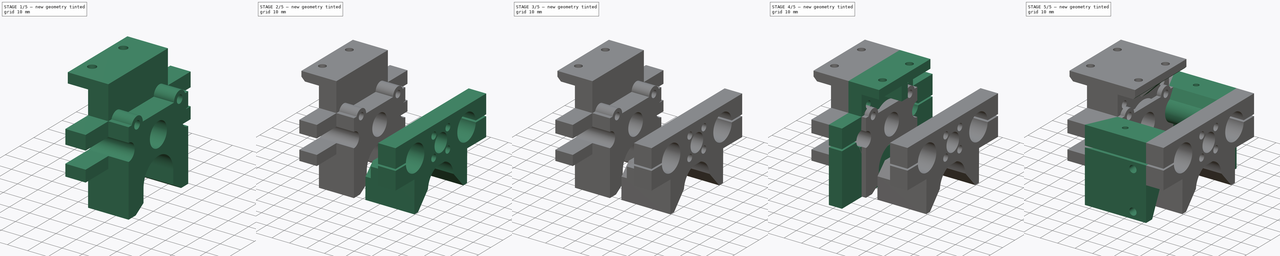
[diagram: build sequence overview — one tinted view per stage of 5, left to right]
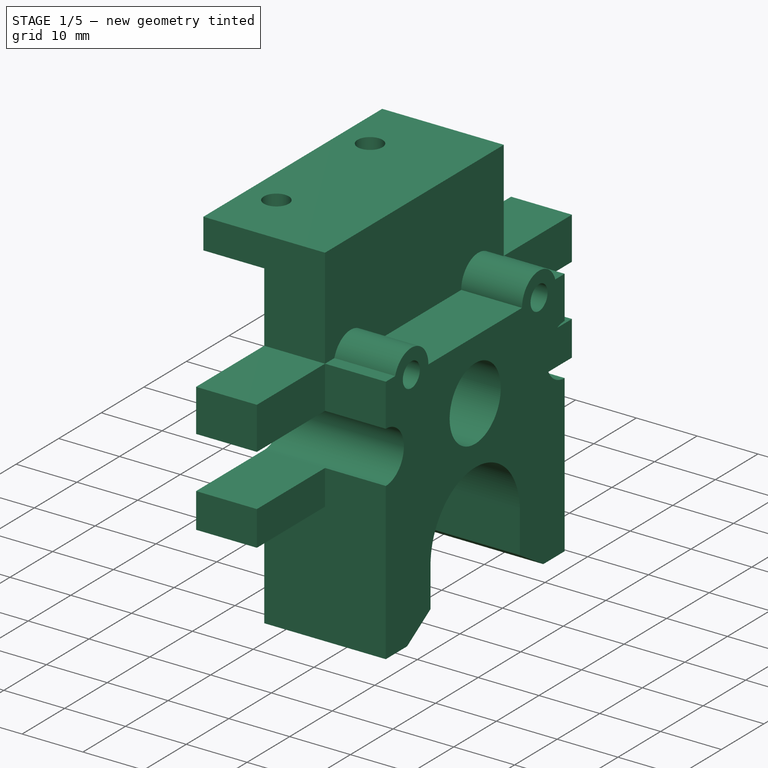
[diagram: stage 1 of 5 — iso view after this stage's code; geometry added in this stage tinted green]
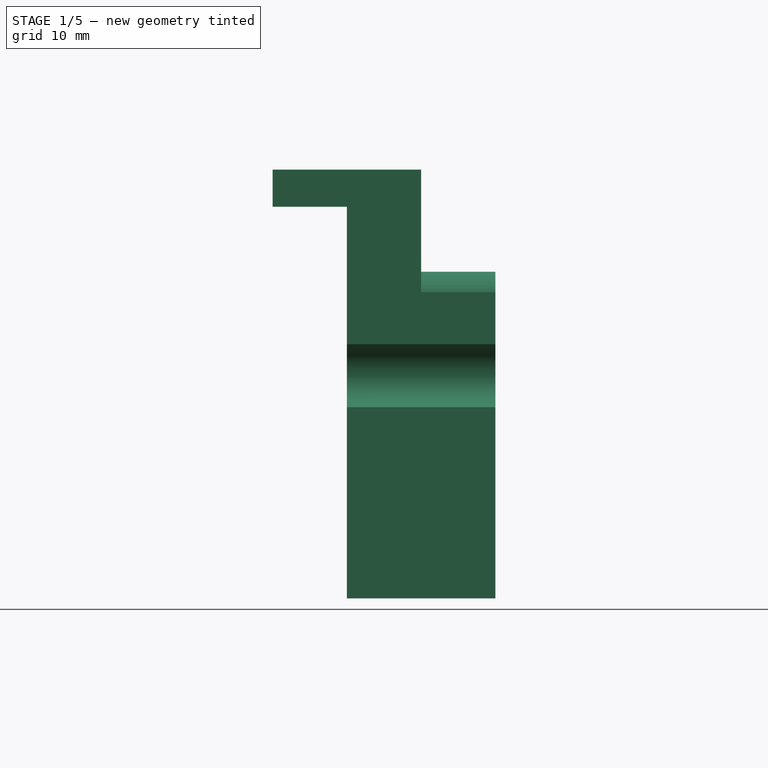
[diagram: stage 1 of 5 — front view after this stage's code; geometry added in this stage tinted green]
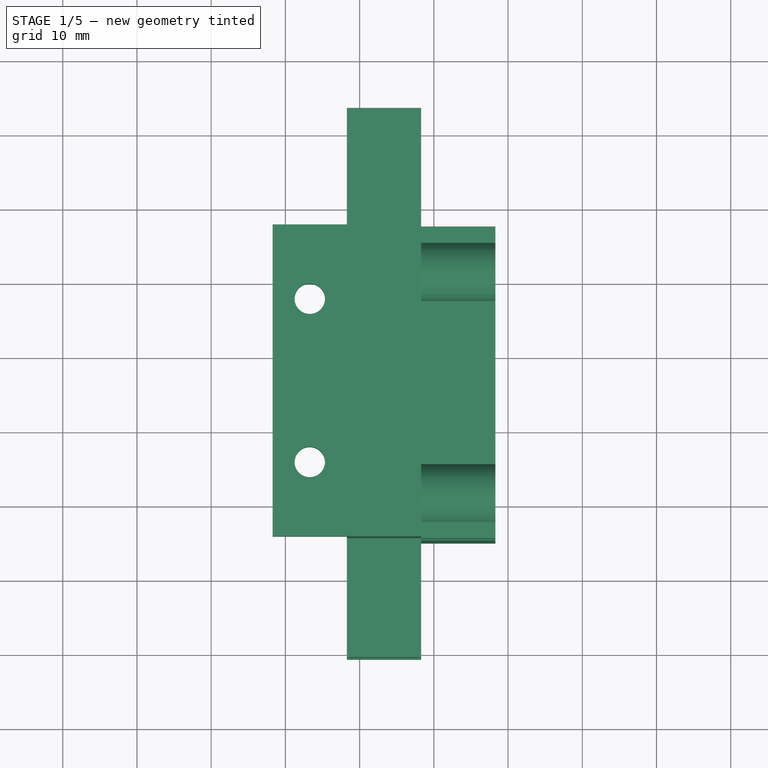
[diagram: stage 1 of 5 — top view after this stage's code; geometry added in this stage tinted green]
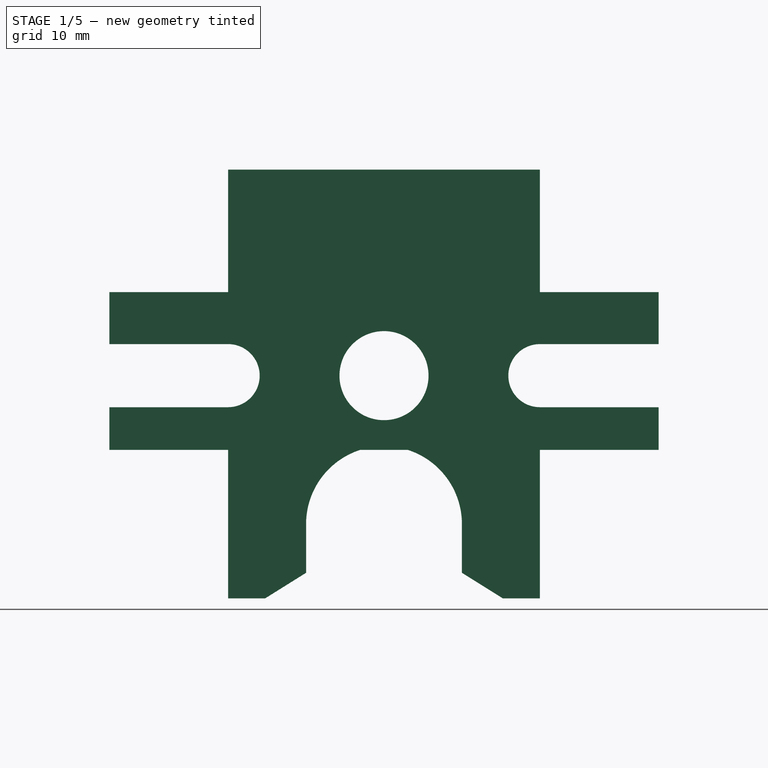
[diagram: stage 1 of 5 — right view after this stage's code; geometry added in this stage tinted green]
FCSTD DOCUMENT  (FreeCAD 1.0R39109 (Git))
Label: Open Pump and Sprayer
License: All rights reserved
LicenseURL: https://en.wikipedia.org/wiki/All_rights_reserved
objects: Sketcher::SketchObject×29, PartDesign::Plane×22, PartDesign::Pad×15, PartDesign::Pocket×14, PartDesign::ShapeBinder×9, App::VarSet×6, PartDesign::Chamfer×6, PartDesign::Body×6, Part::Feature×2
note: 202 computed .brp shape members not serialized (recipe doc carries the construction recipe); baked Part::Feature solids carry a one-line shape summary decoded from their .brp

FEATURE [PartDesign::Body] Body003  label="Basket Back Flat"
  AllowCompound = false
  Group = -> [DatumPlane014,CopyPocket009,CopyPocket010,Sketch019,VarSet003,Pad009]
  Origin = -> Origin003
  Tip = -> Pad009
FEATURE [PartDesign::ShapeBinder] CopyPocket011
  Placement = pos=(-7.5,0,0) rot=(0,0,1;0rad)
  TraceSupport = false
FEATURE [PartDesign::Plane] DatumPlane015
  AttachmentSupport = -> [CopyPocket011]
  Length = 110.779
  MapMode = 5
  Placement = pos=(378.283,0,0) rot=(0.57735,-0.57735,-0.57735;2.0944rad)
  ResizeMode = 0
  Width = 204.057
FEATURE [Sketcher::SketchObject] Sketch020
  ArcFitTolerance = 1e-06
  AttachmentSupport = -> [DatumPlane015]
  ExternalGeometry = -> [CopyPocket011]
  FullyConstrained = true
  MakeInternals = false
  MapMode = 5
  Placement = pos=(378.283,0,0) rot=(0.57735,-0.57735,-0.57735;2.0944rad)
  expr: Constraints[19] = <<HeadVarSet>>.HeadHeight
  sketch-geometry (19):
    g0: ArcOfCircle CenterX=2.955 CenterY=126.483 CenterZ=0 NormalX=0 NormalY=0 NormalZ=1 AngleXU=0 Radius=4.25 StartAngle=4.71239 EndAngle=7.85398
    g1: Circle CenterX=23.955 CenterY=126.483 CenterZ=0 NormalX=0 NormalY=0 NormalZ=1 AngleXU=0 Radius=6
    g2: LineSegment StartX=2.955 StartY=154.233 StartZ=0 EndX=44.955 EndY=154.233 EndZ=0
    g3: LineSegment StartX=2.955 StartY=154.233 StartZ=0 EndX=2.955 EndY=137.733 EndZ=0
    g4: LineSegment StartX=2.955 StartY=137.733 StartZ=0 EndX=-13.045 EndY=137.733 EndZ=0
    g5: LineSegment StartX=2.955 StartY=130.733 StartZ=0 EndX=-13.045 EndY=130.733 EndZ=0
    g6: LineSegment StartX=2.955 StartY=122.233 StartZ=0 EndX=-13.045 EndY=122.233 EndZ=0
    g7: LineSegment StartX=-13.045 StartY=137.733 StartZ=0 EndX=-13.045 EndY=130.733 EndZ=0
    g8: LineSegment [constr] StartX=23.955 StartY=126.483 StartZ=0 EndX=23.955 EndY=116.483 EndZ=0
    g9: LineSegment StartX=23.955 StartY=116.483 StartZ=0 EndX=-13.045 EndY=116.483 EndZ=0
    g10: LineSegment StartX=23.955 StartY=116.483 StartZ=0 EndX=60.955 EndY=116.483 EndZ=0
    g11: LineSegment StartX=44.955 StartY=122.233 StartZ=0 EndX=60.955 EndY=122.233 EndZ=0
    g12: LineSegment StartX=44.955 StartY=130.733 StartZ=0 EndX=60.955 EndY=130.733 EndZ=0
    g13: LineSegment StartX=60.955 StartY=122.233 StartZ=0 EndX=60.955 EndY=116.483 EndZ=0
    g14: LineSegment StartX=60.955 StartY=130.733 StartZ=0 EndX=60.955 EndY=137.733 EndZ=0
    g15: LineSegment StartX=60.955 StartY=137.733 StartZ=0 EndX=44.955 EndY=137.733 EndZ=0
    g16: LineSegment StartX=44.955 StartY=137.733 StartZ=0 EndX=44.955 EndY=154.233 EndZ=0
    g17: ArcOfCircle CenterX=44.955 CenterY=126.483 CenterZ=0 NormalX=0 NormalY=0 NormalZ=1 AngleXU=0 Radius=4.25 StartAngle=1.5708 EndAngle=4.71239
    g18: LineSegment StartX=-13.045 StartY=122.233 StartZ=0 EndX=-13.045 EndY=116.483 EndZ=0
  constraints (47):
    c: Coincident(g0,g-6)
    c: Equal(g0,g-6)
    c: Diameter(g1) = 12
    c: Coincident(g1,g-4)
    c: Coincident(g2,g-3)
    c: Coincident(g2,g-3)
    c: Coincident(g3,g2)
    c: Coincident(g3,g-10)
    c: Coincident(g4,g3)
    c: Coincident(g4,g-11)
    c: PointOnObject(g5,g-11)
    c: Horizontal(g5)
    c: PointOnObject(g6,g-12)
    c: Horizontal(g6)
    c: Equal(g6,g5)
    c: Coincident(g7,g4)
    c: Coincident(g7,g5)
    c: Coincident(g8,g1)
    c: Vertical(g8)
    c: DistanceY(g8,g8) = 10
    c: Coincident(g9,g8)
    c: PointOnObject(g9,g-12)
    c: Horizontal(g9)
    c: Coincident(g10,g8)
    c: PointOnObject(g10,g-14)
    c: Horizontal(g10)
    c: PointOnObject(g11,g-14)
    c: Horizontal(g11)
    c: PointOnObject(g12,g-13)
    c: Horizontal(g12)
    c: Equal(g12,g11)
    c: Coincident(g13,g11)
    c: Coincident(g13,g10)
    c: Coincident(g14,g12)
    c: Coincident(g14,g-13)
    c: Coincident(g15,g14)
    c: Coincident(g15,g-9)
    c: Coincident(g16,g15)
    c: Coincident(g16,g2)
    c: Coincident(g0,g6)
    c: Tangent(g0,g5) = -1.5708
    c: Coincident(g17,g11)
    c: Tangent(g17,g12) = 1.5708
    c: Tangent(g17,g-5)
    c: Coincident(g17,g-5)
    c: Coincident(g18,g6)
    c: Coincident(g18,g9)
FEATURE [App::VarSet] VarSet004  label="HeadVarSet"
  ExtrusionMountHoleDia = 4.1
  ExtrusionMountHoleSep = 22
  ExtrusionMountReinforcementChampfer = 10
  ExtrusionMountReinforcementHeight = 7
  ExtrusionMountReinforcementWidth = 5
  ExtrusionMountThickness = 5
  ExtrusionMountWidth = 10
  FrontMountHoleDia = 3.6
  FrontMountOffset = 20
  HeadHeight = 10
  HeadThickness = 10
  TopHoleDepth = 7
  TopHoleDiameter = 3.6
  TopMountHoleSpacing = 30
FEATURE [PartDesign::Pad] Pad010
  Direction = (-1,0,0)
  Length = 10
  Length2 = 10
  Placement = pos=(378.283,0,0) rot=(0.57735,-0.57735,-0.57735;2.0944rad)
  Profile = -> Sketch020
  ReferenceAxis = -> Sketch020 [N_Axis]
  Refine = true
  Suppressed = false
  Type = 0
  expr: Length = <<HeadVarSet>>.HeadThickness
FEATURE [PartDesign::Plane] DatumPlane016
  AttachmentSupport = -> [Pad010]
  Length = 123.192
  MapMode = 5
  Placement = pos=(378.283,0,116.483) rot=(0.707107,-0.707107,0;3.14159rad)
  ResizeMode = 0
  Width = 440.52
FEATURE [Sketcher::SketchObject] Sketch021
  ArcFitTolerance = 1e-06
  AttachmentSupport = -> [DatumPlane016]
  ExternalGeometry = -> [Pad010]
  FullyConstrained = true
  MakeInternals = false
  MapMode = 5
  Placement = pos=(378.283,0,116.483) rot=(0.707107,-0.707107,0;3.14159rad)
  expr: Constraints[11] = <<HeadVarSet>>.TopHoleDiameter
  expr: Constraints[4] = <<HeadVarSet>>.TopMountHoleSpacing
  sketch-geometry (6):
    g0: LineSegment [constr] StartX=23.955 StartY=10 StartZ=0 EndX=23.955 EndY=0 EndZ=0
    g1: LineSegment [constr] StartX=8.955 StartY=5 StartZ=0 EndX=38.955 EndY=5 EndZ=0
    g2: GeomPoint [constr] X=23.955 Y=5 Z=0
    g3: GeomPoint [constr] X=23.955 Y=5 Z=0
    g4: Circle CenterX=38.955 CenterY=5 CenterZ=0 NormalX=0 NormalY=0 NormalZ=1 AngleXU=0 Radius=1.8
    g5: Circle CenterX=8.955 CenterY=5 CenterZ=0 NormalX=0 NormalY=0 NormalZ=1 AngleXU=0 Radius=1.8
  constraints (12):
    c: Symmetric(g-3,g-3,g0)
    c: Symmetric(g-6,g-6,g0)
    c: Horizontal(g1)
    c: Symmetric(g1,g1,g2)
    c: DistanceX(g1,g1) = 30
    c: Symmetric(g0,g0,g3)
    c: PointOnObject(g3,g1)
    c: PointOnObject(g2,g0)
    c: Coincident(g4,g1)
    c: Coincident(g5,g1)
    c: Equal(g5,g4)
    c: Diameter(g4) = 3.6
FEATURE [PartDesign::Pocket] Pocket010
  BaseFeature = -> Pad010
  Direction = (0,0,1)
  Length = 7
  Length2 = 5
  Placement = pos=(378.283,0,0) rot=(0.57735,-0.57735,-0.57735;2.0944rad)
  Profile = -> Sketch021
  ReferenceAxis = -> Sketch021 [N_Axis]
  Refine = true
  Suppressed = false
  Type = 0
  expr: Length = <<HeadVarSet>>.TopHoleDepth
FEATURE [PartDesign::Plane] DatumPlane017
  AttachmentSupport = -> [Pocket010]
  Length = 123.192
  MapMode = 5
  Placement = pos=(378.283,0,154.233) rot=(0,0,1;1.5708rad)
  ResizeMode = 0
  Width = 440.52
FEATURE [Sketcher::SketchObject] Sketch022
  ArcFitTolerance = 1e-06
  AttachmentSupport = -> [DatumPlane017]
  ExternalGeometry = -> [Pocket010]
  FullyConstrained = true
  MakeInternals = false
  MapMode = 5
  Placement = pos=(378.283,0,154.233) rot=(0,0,1;1.5708rad)
  expr: Constraints[10] = <<HeadVarSet>>.ExtrusionMountWidth
  expr: Constraints[15] = <<HeadVarSet>>.ExtrusionMountHoleSep
  expr: Constraints[21] = <<HeadVarSet>>.ExtrusionMountHoleDia
  sketch-geometry (10):
    g0: LineSegment StartX=-44.955 StartY=10 StartZ=0 EndX=-2.955 EndY=10 EndZ=0
    g1: LineSegment StartX=-2.955 StartY=10 StartZ=0 EndX=-2.955 EndY=20 EndZ=0
    g2: LineSegment StartX=-2.955 StartY=20 StartZ=0 EndX=-44.955 EndY=20 EndZ=0
    g3: LineSegment StartX=-44.955 StartY=20 StartZ=0 EndX=-44.955 EndY=10 EndZ=0
    g4: LineSegment [constr] StartX=-23.955 StartY=20 StartZ=0 EndX=-23.955 EndY=10 EndZ=0
    g5: GeomPoint [constr] X=-23.955 Y=15 Z=0
    g6: LineSegment [constr] StartX=-34.955 StartY=15 StartZ=0 EndX=-12.955 EndY=15 EndZ=0
    g7: GeomPoint [constr] X=-23.955 Y=15 Z=0
    g8: Circle CenterX=-34.955 CenterY=15 CenterZ=0 NormalX=0 NormalY=0 NormalZ=1 AngleXU=0 Radius=2.05
    g9: Circle CenterX=-12.955 CenterY=15 CenterZ=0 NormalX=0 NormalY=0 NormalZ=1 AngleXU=0 Radius=2.05
  constraints (22):
    c: Coincident(g0,g1)
    c: Coincident(g1,g2)
    c: Coincident(g2,g3)
    c: Coincident(g3,g0)
    c: Horizontal(g0)
    c: Horizontal(g2)
    c: Vertical(g1)
    c: Vertical(g3)
    c: Coincident(g0,g-5)
    c: PointOnObject(g-5,g1)
    c: DistanceY(g3,g3) = 10
    c: Symmetric(g2,g2,g4)
    c: Symmetric(g0,g0,g4)
    c: Symmetric(g4,g4,g5)
    c: Horizontal(g6)
    c: DistanceX(g6,g6) = 22
    c: Symmetric(g6,g6,g7)
    c: Coincident(g7,g5)
    c: Coincident(g8,g6)
    c: Coincident(g9,g6)
    c: Equal(g8,g9)
    c: Diameter(g8) = 4.1
FEATURE [PartDesign::Pad] Pad011
  BaseFeature = -> Pocket010
  Direction = (0,0,1)
  Length = 5
  Length2 = 10
  Placement = pos=(378.283,0,0) rot=(0.57735,-0.57735,-0.57735;2.0944rad)
  Profile = -> Sketch022
  ReferenceAxis = -> Sketch022 [N_Axis]
  Refine = true
  Reversed = true
  Suppressed = false
  Type = 0
  expr: Length = <<HeadVarSet>>.ExtrusionMountThickness
FEATURE [PartDesign::Body] Body004  label="Pump Head Base"
  AllowCompound = false
  Group = -> [DatumPlane015,CopyPocket011,Sketch020,VarSet004,Pad010,DatumPlane016,Sketch021,Pocket010,DatumPlane017,Sketch022,Pad011,DatumPlane018,Sketch023,Pad012,Chamfer005,DatumPlane019,Sketch024,Pocket011]
  Origin = -> Origin004
  Placement = pos=(117,0,0) rot=(0,0,1;0rad)
  Tip = -> Pocket011
FEATURE [App::VarSet] VarSet005  label="SyringeMountParams"
  SyringeDIa = 21
FEATURE [PartDesign::ShapeBinder] CopyPocket012
  Placement = pos=(378.283,0,0) rot=(0.57735,-0.57735,-0.57735;2.0944rad)
  TraceSupport = false
FEATURE [PartDesign::Plane] DatumPlane020
  AttachmentSupport = -> [CopyPocket012]
  Length = 186.989
  MapMode = 45
  Placement = pos=(378.283,-23.955,134.409) rot=(0.707107,0,0.707107;3.14159rad)
  ResizeMode = 0
  Width = 91.4729
FEATURE [Sketcher::SketchObject] Sketch025
  ArcFitTolerance = 1e-06
  AttachmentSupport = -> [DatumPlane020]
  ExternalGeometry = -> [CopyPocket012]
  FullyConstrained = true
  MakeInternals = false
  MapMode = 5
  Placement = pos=(378.283,-23.955,134.409) rot=(0.707107,0,0.707107;3.14159rad)
  sketch-geometry (18):
    g0: LineSegment StartX=-12.1759 StartY=-21 StartZ=0 EndX=-17.9259 EndY=-21 EndZ=0
    g1: LineSegment StartX=-12.1759 StartY=21 StartZ=0 EndX=-17.9259 EndY=21 EndZ=0
    g2: LineSegment StartX=-17.9259 StartY=21 StartZ=0 EndX=-17.9259 EndY=-21 EndZ=0
    g3: LineSegment StartX=-3.67588 StartY=-21 StartZ=0 EndX=3.32412 EndY=-21 EndZ=0
    g4: LineSegment StartX=-3.67588 StartY=21 StartZ=0 EndX=3.32412 EndY=21 EndZ=0
    g5: Circle CenterX=-7.92588 CenterY=4.29285e-09 CenterZ=0 NormalX=0 NormalY=0 NormalZ=1 AngleXU=0 Radius=6
    g6: LineSegment [constr] StartX=2.07412 StartY=-15 StartZ=0 EndX=2.07412 EndY=15 EndZ=0
    g7: LineSegment [constr] StartX=2.07412 StartY=-15 StartZ=0 EndX=2.07412 EndY=-11 EndZ=0
    g8: LineSegment [constr] StartX=2.07412 StartY=15 StartZ=0 EndX=2.07412 EndY=11 EndZ=0
    g9: ArcOfCircle CenterX=2.07412 CenterY=-15 CenterZ=0 NormalX=0 NormalY=0 NormalZ=1 AngleXU=0 Radius=4 StartAngle=5.03021 EndAngle=7.85398
    g10: ArcOfCircle CenterX=2.07412 CenterY=15 CenterZ=0 NormalX=0 NormalY=0 NormalZ=1 AngleXU=0 Radius=4 StartAngle=4.71239 EndAngle=7.53616
    g11: LineSegment StartX=3.32412 StartY=-21 StartZ=0 EndX=3.32412 EndY=-18.7997 EndZ=0
    g12: LineSegment StartX=3.32412 StartY=21 StartZ=0 EndX=3.32412 EndY=18.7997 EndZ=0
    g13: LineSegment StartX=2.07412 StartY=11 StartZ=0 EndX=2.07412 EndY=-11 EndZ=0
    g14: Circle CenterX=2.07412 CenterY=15 CenterZ=0 NormalX=0 NormalY=0 NormalZ=1 AngleXU=0 Radius=2
    g15: Circle CenterX=2.07412 CenterY=-15 CenterZ=0 NormalX=0 NormalY=0 NormalZ=1 AngleXU=0 Radius=2
    g16: ArcOfCircle CenterX=-7.92588 CenterY=-21 CenterZ=0 NormalX=0 NormalY=0 NormalZ=1 AngleXU=0 Radius=4.25 StartAngle=2.54839e-10 EndAngle=3.14159
    g17: ArcOfCircle CenterX=-7.92588 CenterY=21 CenterZ=0 NormalX=0 NormalY=0 NormalZ=1 AngleXU=0 Radius=4.25 StartAngle=3.14159 EndAngle=6.28319
  constraints (46):
    c: Coincident(g0,g-11)
    c: PointOnObject(g0,g-7)
    c: Horizontal(g0)
    c: Coincident(g1,g-9)
    c: PointOnObject(g1,g-7)
    c: Horizontal(g1)
    c: Coincident(g2,g1)
    c: Coincident(g2,g0)
    c: Coincident(g3,g-12)
    c: Coincident(g3,g-14)
    c: Coincident(g4,g-10)
    c: Coincident(g4,g-16)
    c: Coincident(g5,g-4)
    c: Equal(g5,g-4)
    c: Coincident(g6,g-3)
    c: Coincident(g6,g-5)
    c: Distance(g7) = 4
    c: Coincident(g7,g6)
    c: PointOnObject(g7,g6)
    c: Distance(g8) = 4
    c: Coincident(g8,g6)
    c: PointOnObject(g8,g6)
    c: Coincident(g9,g6)
    c: PointOnObject(g7,g9)
    c: Coincident(g10,g6)
    c: PointOnObject(g8,g10)
    c: Coincident(g11,g3)
    c: Vertical(g11)
    c: Coincident(g12,g4)
    c: Vertical(g12)
    c: Coincident(g13,g8)
    c: Coincident(g13,g7)
    c: PointOnObject(g9,g6)
    c: Coincident(g9,g11)
    c: Coincident(g10,g12)
    c: PointOnObject(g10,g6)
    c: Coincident(g14,g6)
    c: Coincident(g15,g6)
    c: Diameter(g15) = 4
    c: Diameter(g14) = 4
    c: Coincident(g16,g-6)
    c: Coincident(g16,g0)
    c: PointOnObject(g16,g3)
    c: Coincident(g17,g-8)
    c: Coincident(g17,g4)
    c: PointOnObject(g17,g1)
FEATURE [PartDesign::Pad] Pad013
  Direction = (1,0,-2e-16)
  Length = 10
  Length2 = 10
  Placement = pos=(378.283,-23.955,134.409) rot=(0.707107,0,0.707107;3.14159rad)
  Profile = -> Sketch025
  ReferenceAxis = -> Sketch025 [N_Axis]
  Refine = true
  Suppressed = false
  Type = 0
FEATURE [PartDesign::Plane] DatumPlane021
  AttachmentSupport = -> [Pad013]
  Length = 186.989
  MapMode = 5
  Placement = pos=(388.283,-23.955,134.409) rot=(0.707107,0,0.707107;3.14159rad)
  ResizeMode = 0
  Width = 91.4729
FEATURE [Sketcher::SketchObject] Sketch026
  ArcFitTolerance = 1e-06
  AttachmentSupport = -> [DatumPlane021]
  ExternalGeometry = -> [Pad013]
  FullyConstrained = true
  MakeInternals = false
  MapMode = 5
  Placement = pos=(388.283,-23.955,134.409) rot=(0.707107,0,0.707107;3.14159rad)
  sketch-geometry (8):
    g0: LineSegment StartX=-17.9259 StartY=21 StartZ=0 EndX=-17.9259 EndY=-21 EndZ=0
    g1: LineSegment StartX=-17.9259 StartY=-21 StartZ=0 EndX=-37.9259 EndY=-21 EndZ=0
    g2: LineSegment StartX=-17.9259 StartY=21 StartZ=0 EndX=-37.9259 EndY=21 EndZ=0
    g3: LineSegment StartX=-37.9259 StartY=21 StartZ=0 EndX=-37.9259 EndY=16 EndZ=0
    g4: LineSegment StartX=-37.9259 StartY=-21 StartZ=0 EndX=-37.9259 EndY=-16 EndZ=0
    g5: LineSegment [constr] StartX=-7.92588 StartY=4.29285e-09 StartZ=0 EndX=-27.9259 EndY=4.29285e-09 EndZ=0
    g6: LineSegment StartX=-37.9259 StartY=16 StartZ=0 EndX=-27.9259 EndY=4.29285e-09 EndZ=0
    g7: LineSegment StartX=-27.9259 StartY=4.29285e-09 StartZ=0 EndX=-37.9259 EndY=-16 EndZ=0
  constraints (21):
    c: Coincident(g0,g-3)
    c: Coincident(g0,g-3)
    c: Distance(g1) = 20
    c: Coincident(g1,g0)
    c: Horizontal(g1)
    c: Distance(g2) = 20
    c: Coincident(g2,g0)
    c: Horizontal(g2)
    c: Distance(g3) = 5
    c: Coincident(g3,g2)
    c: Vertical(g3)
    c: Distance(g4) = 5
    c: Coincident(g4,g1)
    c: Perpendicular(g1,g4)
    c: Distance(g5) = 20
    c: Coincident(g5,g-4)
    c: Horizontal(g5)
    c: Coincident(g6,g3)
    c: Coincident(g6,g5)
    c: Coincident(g7,g5)
    c: Coincident(g7,g4)
FEATURE [PartDesign::Pad] Pad014
  BaseFeature = -> Pad013
  Direction = (1,0,-2e-16)
  Length = 20
  Length2 = 10
  Placement = pos=(378.283,-23.955,134.409) rot=(0.707107,0,0.707107;3.14159rad)
  Profile = -> Sketch026
  ReferenceAxis = -> Sketch026 [N_Axis]
  Refine = true
  Reversed = true
  Suppressed = false
  Type = 0
FEATURE [Sketcher::SketchObject] Sketch027
  ArcFitTolerance = 1e-06
  AttachmentSupport = -> [DatumPlane021]
  ExternalGeometry = -> [Pad014]
  FullyConstrained = true
  MakeInternals = false
  MapMode = 5
  Placement = pos=(388.283,-23.955,134.409) rot=(0.707107,0,0.707107;3.14159rad)
  expr: Constraints[1] = <<SyringeMountParams>>.SyringeDIa
  sketch-geometry (1):
    g0: Circle CenterX=-27.9259 CenterY=4.29285e-09 CenterZ=0 NormalX=0 NormalY=0 NormalZ=1 AngleXU=0 Radius=10.5
  constraints (2):
    c: Coincident(g0,g-4)
    c: Diameter(g0) = 21
FEATURE [PartDesign::Pocket] Pocket012
  BaseFeature = -> Pad014
  Direction = (-1,0,2e-16)
  Length = 5
  Length2 = 5
  Placement = pos=(378.283,-23.955,134.409) rot=(0.707107,0,0.707107;3.14159rad)
  Profile = -> Sketch027
  ReferenceAxis = -> Sketch027 [N_Axis]
  Refine = true
  Suppressed = false
  Type = 2
FEATURE [Sketcher::SketchObject] Sketch028
  ArcFitTolerance = 1e-06
  AttachmentSupport = -> [DatumPlane021]
  ExternalGeometry = -> [Pocket012]
  FullyConstrained = true
  MakeInternals = false
  MapMode = 5
  Placement = pos=(388.283,-23.955,134.409) rot=(0.707107,0,0.707107;3.14159rad)
  sketch-geometry (6):
    g0: GeomPoint X=-27.9259 Y=10.5 Z=0
    g1: GeomPoint X=-27.9259 Y=-10.5 Z=0
    g2: LineSegment StartX=-27.9259 StartY=10.5 StartZ=0 EndX=-34.4884 EndY=10.5 EndZ=0
    g3: LineSegment StartX=-27.9259 StartY=-10.5 StartZ=0 EndX=-34.4884 EndY=-10.5 EndZ=0
    g4: LineSegment StartX=-34.4884 StartY=10.5 StartZ=0 EndX=-34.4884 EndY=-10.5 EndZ=0
    g5: LineSegment StartX=-27.9259 StartY=-10.5 StartZ=0 EndX=-27.9259 EndY=10.5 EndZ=0
  constraints (14):
    c: PointOnObject(g0,g-3)
    c: PointOnObject(g1,g-6)
    c: Vertical(g0,g-6)
    c: Vertical(g1,g-6)
    c: Coincident(g2,g0)
    c: PointOnObject(g2,g-4)
    c: Horizontal(g2)
    c: Coincident(g3,g1)
    c: PointOnObject(g3,g-5)
    c: Parallel(g3,g-1)
    c: Coincident(g4,g2)
    c: Coincident(g4,g3)
    c: Coincident(g5,g1)
    c: Coincident(g5,g0)
FEATURE [PartDesign::Pocket] Pocket013
  BaseFeature = -> Pocket012
  Direction = (-1,0,2e-16)
  Length = 5
  Length2 = 5
  Placement = pos=(378.283,-23.955,134.409) rot=(0.707107,0,0.707107;3.14159rad)
  Profile = -> Sketch028
  ReferenceAxis = -> Sketch028 [N_Axis]
  Refine = true
  Suppressed = false
  Type = 1
FEATURE [PartDesign::Body] Body005  label="Parametric Syringe Mount"
  AllowCompound = false
  Group = -> [VarSet005,DatumPlane020,CopyPocket012,Sketch025,Pad013,DatumPlane021,Sketch026,Pad014,Sketch027,Pocket012,Sketch028,Pocket013]
  Origin = -> Origin005
  Placement = pos=(117,0,0) rot=(0,0,1;0rad)
  Tip = -> Pocket013
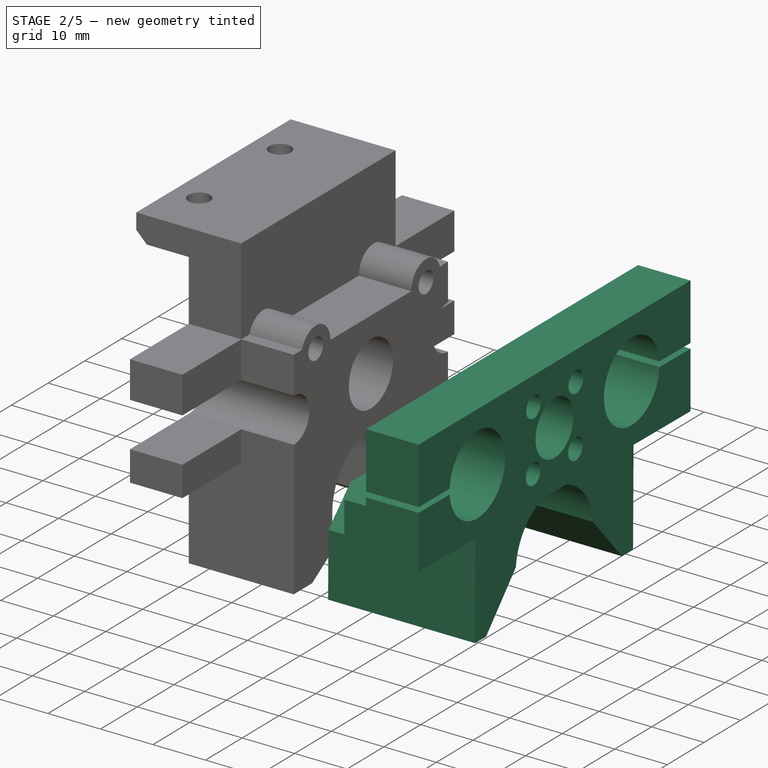
[diagram: stage 2 of 5 — iso view after this stage's code; geometry added in this stage tinted green]
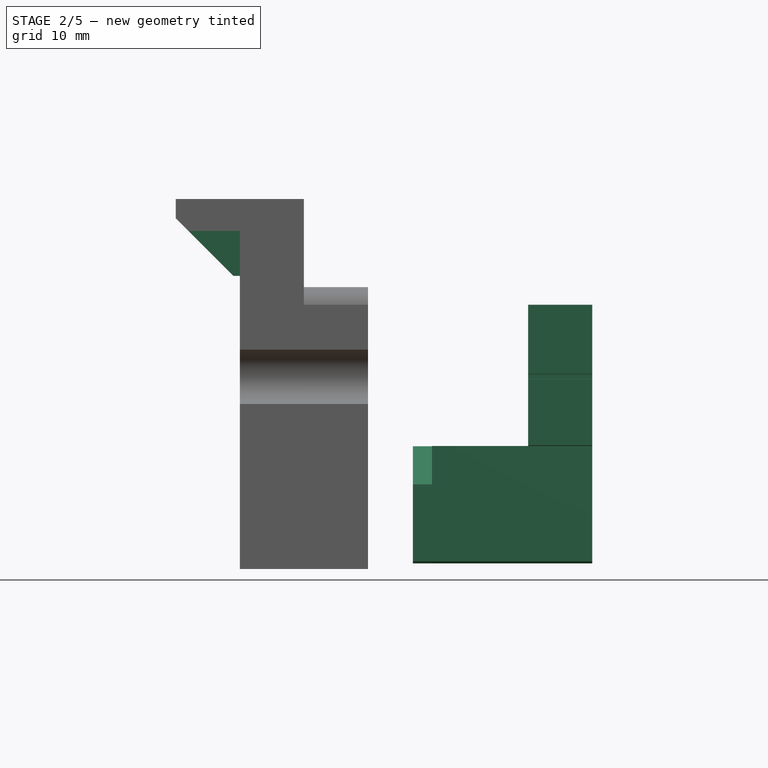
[diagram: stage 2 of 5 — front view after this stage's code; geometry added in this stage tinted green]
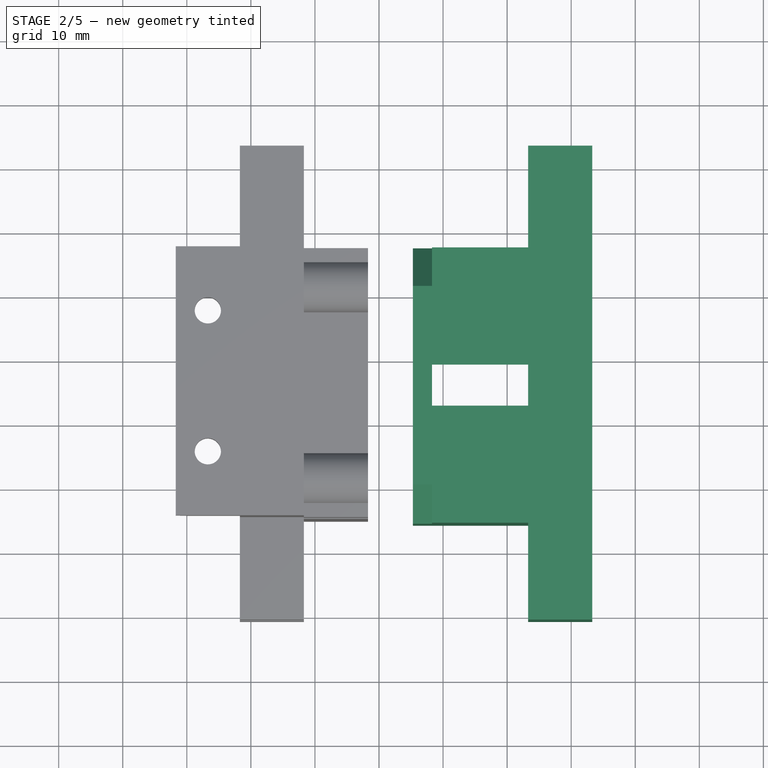
[diagram: stage 2 of 5 — top view after this stage's code; geometry added in this stage tinted green]
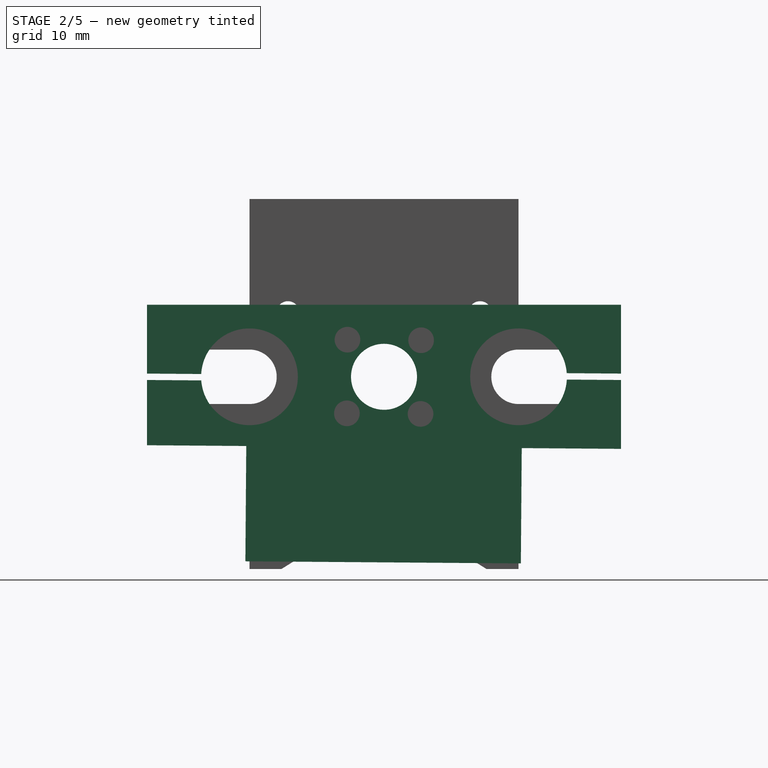
[diagram: stage 2 of 5 — right view after this stage's code; geometry added in this stage tinted green]
FEATURE [PartDesign::ShapeBinder] CopyPocket006
  Placement = pos=(27.5,-8.53e-14,-1.563e-13) rot=(0,0,1;0rad)
  TraceSupport = false
FEATURE [PartDesign::ShapeBinder] CopyPocket007
  Placement = pos=(27.5,-8.53e-14,-1.563e-13) rot=(0,0,1;0rad)
  TraceSupport = false
FEATURE [PartDesign::Plane] DatumPlane010
  AttachmentSupport = -> [CopyPocket006,CopyPocket007]
  Length = 187.91
  MapMode = 45
  Placement = pos=(413.283,-23.2842,120.112) rot=(0.707104,0.002705,0.707104;3.13618rad)
  ResizeMode = 0
  Width = 111.463
FEATURE [Sketcher::SketchObject] Sketch014
  ArcFitTolerance = 1e-06
  AttachmentSupport = -> [DatumPlane010]
  ExternalGeometry = -> [CopyPocket007,CopyPocket006]
  FullyConstrained = true
  MakeInternals = false
  MapMode = 5
  Placement = pos=(413.283,-23.2842,120.112) rot=(0.707104,0.002705,0.707104;3.13618rad)
  expr: Constraints[3] = <<R_BoltOn_SET>>.LinearRodBearingDiameter
  sketch-geometry (12):
    g0: ArcOfCircle CenterX=6.2051 CenterY=21.7189 CenterZ=0 NormalX=0 NormalY=0 NormalZ=1 AngleXU=0 Radius=7.55 StartAngle=1.65333 EndAngle=7.80395
    g1: ArcOfCircle CenterX=6.52644 CenterY=-20.2798 CenterZ=0 NormalX=0 NormalY=0 NormalZ=1 AngleXU=0 Radius=7.55 StartAngle=4.79492 EndAngle=10.9455
    g2: LineSegment StartX=6.58267 StartY=37.7223 StartZ=0 EndX=6.58267 EndY=29.2595 EndZ=0
    g3: LineSegment StartX=5.5827 StartY=37.7146 StartZ=0 EndX=5.5827 EndY=29.2432 EndZ=0
    g4: LineSegment StartX=7.14885 StartY=-36.2756 StartZ=0 EndX=7.14885 EndY=-27.8042 EndZ=0
    g5: LineSegment StartX=6.14888 StartY=-36.2832 StartZ=0 EndX=6.14888 EndY=-27.8204 EndZ=0
    g6: LineSegment StartX=6.58267 StartY=37.7223 StartZ=0 EndX=17.3324 EndY=37.8045 EndZ=0
    g7: LineSegment StartX=17.3324 StartY=37.8045 StartZ=0 EndX=17.8985 EndY=-36.1933 EndZ=0
    g8: LineSegment StartX=17.8985 StartY=-36.1933 StartZ=0 EndX=7.14885 EndY=-36.2756 EndZ=0
    g9: LineSegment StartX=6.14888 StartY=-36.2832 StartZ=0 EndX=-4.60081 EndY=-36.3655 EndZ=0
    g10: LineSegment StartX=-4.60081 StartY=37.6367 StartZ=0 EndX=-4.60081 EndY=-36.3655 EndZ=0
    g11: LineSegment StartX=-4.60081 StartY=37.6367 StartZ=0 EndX=5.5827 EndY=37.7146 EndZ=0
  constraints (30):
    c: Coincident(g0,g-3)
    c: Coincident(g1,g-4)
    c: Equal(g0,g1)
    c: Diameter(g0) = 15.1
    c: Coincident(g2,g-5)
    c: Vertical(g2)
    c: Coincident(g3,g-6)
    c: Vertical(g3)
    c: Coincident(g4,g-8)
    c: Vertical(g4)
    c: Coincident(g5,g-7)
    c: Vertical(g5)
    c: Coincident(g0,g2)
    c: Coincident(g0,g3)
    c: Coincident(g1,g5)
    c: Coincident(g1,g4)
    c: Coincident(g6,g2)
    c: Coincident(g6,g-9)
    c: Coincident(g7,g6)
    c: Coincident(g7,g-11)
    c: Coincident(g8,g-11)
    c: Coincident(g8,g4)
    c: Coincident(g9,g5)
    c: Equal(g9,g8)
    c: Coincident(g10,g9)
    c: Vertical(g10)
    c: PointOnObject(g9,g-7)
    c: PointOnObject(g10,g-6)
    c: Coincident(g11,g10)
    c: Coincident(g11,g3)
FEATURE [PartDesign::Pad] Pad007
  Direction = (1,-1.9e-15,-2e-16)
  Length = 10
  Length2 = 10
  Placement = pos=(413.283,-23.2842,120.112) rot=(0.707104,0.002705,0.707104;3.13618rad)
  Profile = -> Sketch014
  ReferenceAxis = -> Sketch014 [N_Axis]
  Refine = true
  Suppressed = false
  Type = 0
  expr: Length = <<R_BoltOn_SET>>.RunnerThickness
FEATURE [PartDesign::Plane] DatumPlane011
  AttachmentSupport = -> [Pad007]
  Length = 187.91
  MapMode = 5
  Placement = pos=(423.283,-23.2842,120.112) rot=(0.707104,0.002705,0.707104;3.13618rad)
  ResizeMode = 0
  Width = 111.463
FEATURE [Sketcher::SketchObject] Sketch015
  ArcFitTolerance = 1e-06
  AttachmentSupport = -> [DatumPlane011]
  ExternalGeometry = -> [Pad007]
  FullyConstrained = true
  MakeInternals = false
  MapMode = 5
  Placement = pos=(423.283,-23.2842,120.112) rot=(0.707104,0.002705,0.707104;3.13618rad)
  expr: Constraints[26] = <<R_BoltOn_SET>>.T8RadialNutHoleDia
  expr: Constraints[4] = <<R_BoltOn_SET>>.T8NutCentreHoleDia
  expr: Constraints[6] = <<R_BoltOn_SET>>.T8NutRadialBoltDiameter
  sketch-geometry (12):
    g0: LineSegment [constr] StartX=6.2051 StartY=21.7189 StartZ=0 EndX=6.52644 EndY=-20.2798 EndZ=0
    g1: GeomPoint [constr] X=6.36577 Y=0.719537 Z=0
    g2: Circle CenterX=6.36577 CenterY=0.719537 CenterZ=0 NormalX=0 NormalY=0 NormalZ=1 AngleXU=0 Radius=5.15
    g3: Circle [constr] CenterX=6.36577 CenterY=0.719537 CenterZ=0 NormalX=0 NormalY=0 NormalZ=1 AngleXU=0 Radius=8.13
    g4: LineSegment [constr] StartX=0.616996 StartY=6.46832 StartZ=0 EndX=0.616996 EndY=-5.02924 EndZ=0
    g5: LineSegment [constr] StartX=0.616996 StartY=-5.02924 StartZ=0 EndX=12.1146 EndY=-5.02924 EndZ=0
    g6: LineSegment [constr] StartX=12.1146 StartY=-5.02924 StartZ=0 EndX=12.1146 EndY=6.46832 EndZ=0
    g7: LineSegment [constr] StartX=12.1146 StartY=6.46832 StartZ=0 EndX=0.616996 EndY=6.46832 EndZ=0
    g8: Circle CenterX=0.616996 CenterY=6.46832 CenterZ=0 NormalX=0 NormalY=0 NormalZ=1 AngleXU=0 Radius=2
    g9: Circle CenterX=0.616996 CenterY=-5.02924 CenterZ=0 NormalX=0 NormalY=0 NormalZ=1 AngleXU=0 Radius=2
    g10: Circle CenterX=12.1146 CenterY=-5.02924 CenterZ=0 NormalX=0 NormalY=0 NormalZ=1 AngleXU=0 Radius=2
    g11: Circle CenterX=12.1146 CenterY=6.46832 CenterZ=0 NormalX=0 NormalY=0 NormalZ=1 AngleXU=0 Radius=2
  constraints (27):
    c: Coincident(g0,g-6)
    c: Coincident(g0,g-5)
    c: Symmetric(g0,g0,g1)
    c: Coincident(g2,g1)
    c: Diameter(g2) = 10.3
    c: Coincident(g3,g1)
    c: Diameter(g3) = 16.26
    c: PointOnObject(g4,g3)
    c: PointOnObject(g4,g3)
    c: Coincident(g5,g4)
    c: PointOnObject(g5,g3)
    c: Coincident(g6,g5)
    c: PointOnObject(g6,g3)
    c: Vertical(g6)
    c: Coincident(g7,g6)
    c: Coincident(g7,g4)
    c: Equal(g7,g6)
    c: Equal(g6,g5)
    c: Equal(g5,g4)
    c: Coincident(g8,g4)
    c: Coincident(g9,g4)
    c: Coincident(g10,g5)
    c: Coincident(g11,g6)
    c: Equal(g11,g10)
    c: Equal(g10,g9)
    c: Equal(g9,g8)
    c: Diameter(g8) = 4
FEATURE [PartDesign::Pocket] Pocket007
  BaseFeature = -> Pad007
  Direction = (-1,1.7e-15,2e-16)
  Length = 5
  Length2 = 5
  Placement = pos=(413.283,-23.2842,120.112) rot=(0.707104,0.002705,0.707104;3.13618rad)
  Profile = -> Sketch015
  ReferenceAxis = -> Sketch015 [N_Axis]
  Refine = true
  Suppressed = false
  Type = 2
FEATURE [Sketcher::SketchObject] Sketch016
  ArcFitTolerance = 1e-06
  AttachmentSupport = -> [DatumPlane011]
  ExternalGeometry = -> [Pocket007]
  FullyConstrained = true
  MakeInternals = false
  MapMode = 5
  Placement = pos=(423.283,-23.2842,120.112) rot=(0.707104,0.002705,0.707104;3.13618rad)
  sketch-geometry (18):
    g0: GeomPoint X=-4.60081 Y=0.635629 Z=0
    g1: LineSegment [constr] StartX=-4.60081 StartY=0.635629 StartZ=0 EndX=-4.60081 EndY=37.6367 EndZ=0
    g2: LineSegment [constr] StartX=-4.60081 StartY=0.635629 StartZ=0 EndX=-4.60081 EndY=-36.3655 EndZ=0
    g3: GeomPoint [constr] X=-4.60081 Y=19.1362 Z=0
    g4: GeomPoint [constr] X=-4.60081 Y=-17.8649 Z=0
    g5: LineSegment [constr] StartX=-4.60081 StartY=19.1362 StartZ=0 EndX=-22.6008 EndY=19.1362 EndZ=0
    g6: LineSegment [constr] StartX=-4.60081 StartY=-17.8649 StartZ=0 EndX=-22.6008 EndY=-17.8649 EndZ=0
    g7: LineSegment [constr] StartX=-4.60081 StartY=0.635629 StartZ=0 EndX=-14.6008 EndY=0.635629 EndZ=0
    g8: ArcOfCircle CenterX=-14.6008 CenterY=0.635629 CenterZ=0 NormalX=0 NormalY=0 NormalZ=1 AngleXU=0 Radius=10.5 StartAngle=4.79901 EndAngle=5.97334
    g9: LineSegment StartX=-22.6008 StartY=19.1362 StartZ=0 EndX=-13.6924 EndY=11.0963 EndZ=0
    g10: LineSegment StartX=-22.6008 StartY=-17.8649 StartZ=0 EndX=-13.6924 EndY=-9.825 EndZ=0
    g11: LineSegment StartX=-22.6008 StartY=19.1362 StartZ=0 EndX=-22.6008 EndY=22.1362 EndZ=0
    g12: LineSegment StartX=-22.6008 StartY=-17.8649 StartZ=0 EndX=-22.6008 EndY=-20.8649 EndZ=0
    g13: LineSegment StartX=-22.6008 StartY=22.1362 StartZ=0 EndX=-4.60081 EndY=22.1362 EndZ=0
    g14: LineSegment StartX=-22.6008 StartY=-20.8649 StartZ=0 EndX=-4.60081 EndY=-20.8649 EndZ=0
    g15: LineSegment StartX=-4.60081 StartY=-20.8649 StartZ=0 EndX=-4.60081 EndY=-2.56593 EndZ=0
    g16: LineSegment StartX=-4.60081 StartY=22.1362 StartZ=0 EndX=-4.60081 EndY=3.83719 EndZ=0
    g17: ArcOfCircle CenterX=-14.6008 CenterY=0.635629 CenterZ=0 NormalX=0 NormalY=0 NormalZ=1 AngleXU=0 Radius=10.5 StartAngle=0.309845 EndAngle=1.48417
  constraints (46):
    c: Symmetric(g-3,g-3,g0)
    c: Coincident(g1,g0)
    c: Coincident(g1,g-3)
    c: Coincident(g2,g0)
    c: Coincident(g2,g-3)
    c: Symmetric(g1,g1,g3)
    c: Symmetric(g2,g2,g4)
    c: Distance(g5) = 18
    c: Coincident(g5,g3)
    c: Horizontal(g5)
    c: Coincident(g6,g4)
    c: Horizontal(g6)
    c: Equal(g5,g6)
    c: Distance(g7) = 10
    c: Coincident(g7,g0)
    c: Horizontal(g7)
    c: Diameter(g8) = 21
    c: Coincident(g8,g7)
    c: Coincident(g9,g5)
    c: Distance(g9,g9) = 12
    c: Coincident(g10,g6)
    c: Distance(g10,g10) = 12
    c: Coincident(g17,g9)
    c: Coincident(g8,g10)
    c: Distance(g11) = 3
    c: Coincident(g11,g5)
    c: Vertical(g11)
    c: Distance(g12) = 3
    c: Coincident(g12,g6)
    c: Vertical(g12)
    c: Coincident(g13,g11)
    c: PointOnObject(g13,g1)
    c: Horizontal(g13)
    c: Coincident(g14,g12)
    c: PointOnObject(g14,g2)
    c: Horizontal(g14)
    c: Coincident(g15,g14)
    c: PointOnObject(g15,g8)
    c: Vertical(g15)
    c: Coincident(g16,g13)
    c: PointOnObject(g16,g17)
    c: Vertical(g16)
    c: Equal(g8,g17)
    c: PointOnObject(g8,g2)
    c: PointOnObject(g17,g1)
    c: Coincident(g8,g17)
FEATURE [PartDesign::Pad] Pad008
  BaseFeature = -> Pocket007
  Direction = (1,-1.7e-15,-2e-16)
  Length = 25
  Length2 = 10
  Placement = pos=(413.283,-23.2842,120.112) rot=(0.707104,0.002705,0.707104;3.13618rad)
  Profile = -> Sketch016
  ReferenceAxis = -> Sketch016 [N_Axis]
  Refine = true
  Reversed = true
  Suppressed = false
  Type = 0
  expr: Length = <<R_BoltOn_SET>>.SyringeBasketDepth
FEATURE [PartDesign::Body] Body002  label="Runner Bolt On Basket"
  AllowCompound = false
  Group = -> [DatumPlane010,CopyPocket006,CopyPocket007,Sketch014,Pad007,DatumPlane011,Sketch015,Pocket007,Sketch016,Pad008,DatumPlane012,Sketch017,Pocket008,Chamfer001,Chamfer004,DatumPlane013,Sketch018,Pocket009,VarSet002]
  Origin = -> Origin002
  Tip = -> Pocket009
FEATURE [PartDesign::ShapeBinder] CopyPocket009
  Placement = pos=(413.283,-23.2842,120.112) rot=(0.707104,0.002705,0.707104;3.13618rad)
  TraceSupport = false
FEATURE [PartDesign::ShapeBinder] CopyPocket010
  Placement = pos=(413.283,-23.2842,120.112) rot=(0.707104,0.002705,0.707104;3.13618rad)
  TraceSupport = false
FEATURE [PartDesign::Plane] DatumPlane014
  AttachmentSupport = -> [CopyPocket009,CopyPocket010]
  Length = 161.337
  MapMode = 45
  Placement = pos=(398.283,-24.0154,107.623) rot=(0.707104,0.002705,0.707104;3.13618rad)
  ResizeMode = 0
  Width = 91.7871
FEATURE [Sketcher::SketchObject] Sketch019
  ArcFitTolerance = 1e-06
  AttachmentSupport = -> [DatumPlane014]
  ExternalGeometry = -> [CopyPocket010,CopyPocket009]
  FullyConstrained = true
  MakeInternals = false
  MapMode = 5
  Placement = pos=(398.283,-24.0154,107.623) rot=(0.707104,0.002705,0.707104;3.13618rad)
  sketch-geometry (8):
    g0: Circle CenterX=3.89346 CenterY=15 CenterZ=0 NormalX=0 NormalY=0 NormalZ=1 AngleXU=0 Radius=2
    g1: Circle CenterX=3.89346 CenterY=-15 CenterZ=0 NormalX=0 NormalY=0 NormalZ=1 AngleXU=0 Radius=2
    g2: LineSegment StartX=7.89346 StartY=15.5005 StartZ=0 EndX=7.89346 EndY=-15.5005 EndZ=0
    g3: LineSegment StartX=7.89346 StartY=-15.5005 StartZ=0 EndX=1.89346 EndY=-21.5005 EndZ=0
    g4: LineSegment StartX=1.89346 StartY=-21.5005 StartZ=0 EndX=-10.1065 EndY=-21.5005 EndZ=0
    g5: LineSegment StartX=-10.1065 StartY=-21.5005 StartZ=0 EndX=-10.1065 EndY=21.5005 EndZ=0
    g6: LineSegment StartX=-10.1065 StartY=21.5005 StartZ=0 EndX=1.89346 EndY=21.5005 EndZ=0
    g7: LineSegment StartX=1.89346 StartY=21.5005 StartZ=0 EndX=7.89346 EndY=15.5005 EndZ=0
  constraints (16):
    c: Diameter(g0) = 4
    c: Coincident(g0,g-4)
    c: Diameter(g1) = 4
    c: Coincident(g1,g-13)
    c: Coincident(g2,g-6)
    c: Coincident(g2,g-12)
    c: Coincident(g2,g3)
    c: Coincident(g3,g-16)
    c: Coincident(g3,g4)
    c: Coincident(g4,g-16)
    c: Coincident(g4,g5)
    c: Coincident(g5,g-9)
    c: Coincident(g5,g6)
    c: Coincident(g6,g-5)
    c: Coincident(g6,g7)
    c: Coincident(g7,g2)
FEATURE [App::VarSet] VarSet003  label="Basket Back FLat Set"
  BackThickness = 3
FEATURE [PartDesign::Pad] Pad009
  Direction = (1,0,-2e-16)
  Length = 3
  Length2 = 10
  Placement = pos=(398.283,-24.0154,107.623) rot=(0.707104,0.002705,0.707104;3.13618rad)
  Profile = -> Sketch019
  ReferenceAxis = -> Sketch019 [N_Axis]
  Refine = true
  Reversed = true
  Suppressed = false
  Type = 0
  expr: Length = <<Basket Back FLat Set>>.BackThickness
FEATURE [PartDesign::Plane] DatumPlane018
  AttachmentSupport = -> [Pad011]
  Length = 123.192
  MapMode = 5
  Placement = pos=(378.283,0,149.233) rot=(0.707107,-0.707107,0;3.14159rad)
  ResizeMode = 0
  Width = 440.52
FEATURE [Sketcher::SketchObject] Sketch023
  ArcFitTolerance = 1e-06
  AttachmentSupport = -> [DatumPlane018]
  ExternalGeometry = -> [Pad011]
  FullyConstrained = true
  MakeInternals = false
  MapMode = 5
  Placement = pos=(378.283,0,149.233) rot=(0.707107,-0.707107,0;3.14159rad)
  expr: Constraints[16] = <<HeadVarSet>>.ExtrusionMountReinforcementWidth
  sketch-geometry (9):
    g0: GeomPoint X=23.955 Y=20 Z=0
    g1: GeomPoint X=23.955 Y=10 Z=0
    g2: LineSegment [constr] StartX=23.955 StartY=20 StartZ=0 EndX=23.955 EndY=10 EndZ=0
    g3: GeomPoint [constr] X=23.955 Y=15 Z=0
    g4: LineSegment StartX=21.455 StartY=10 StartZ=0 EndX=26.455 EndY=10 EndZ=0
    g5: LineSegment StartX=26.455 StartY=10 StartZ=0 EndX=26.455 EndY=20 EndZ=0
    g6: LineSegment StartX=26.455 StartY=20 StartZ=0 EndX=21.455 EndY=20 EndZ=0
    g7: LineSegment StartX=21.455 StartY=20 StartZ=0 EndX=21.455 EndY=10 EndZ=0
    g8: GeomPoint [constr] X=23.955 Y=15 Z=0
  constraints (17):
    c: Symmetric(g-3,g-3,g0)
    c: Symmetric(g-6,g-6,g1)
    c: Coincident(g2,g0)
    c: Coincident(g2,g1)
    c: Symmetric(g2,g2,g3)
    c: Coincident(g4,g5)
    c: Coincident(g5,g6)
    c: Coincident(g6,g7)
    c: Coincident(g7,g4)
    c: Horizontal(g4)
    c: Horizontal(g6)
    c: Vertical(g5)
    c: Vertical(g7)
    c: Symmetric(g6,g4,g8)
    c: Coincident(g8,g3)
    c: PointOnObject(g5,g-3)
    c: DistanceX(g6,g6) = 5
FEATURE [PartDesign::Pad] Pad012
  BaseFeature = -> Pad011
  Direction = (0,0,-1)
  Length = 7
  Length2 = 10
  Placement = pos=(378.283,0,0) rot=(0.57735,-0.57735,-0.57735;2.0944rad)
  Profile = -> Sketch023
  ReferenceAxis = -> Sketch023 [N_Axis]
  Refine = true
  Suppressed = false
  Type = 0
  expr: Length = <<HeadVarSet>>.ExtrusionMountReinforcementHeight
FEATURE [PartDesign::Chamfer] Chamfer005
  Angle = 45
  Base = -> Pad012 [Edge70]
  BaseFeature = -> Pad012
  ChamferType = 0
  FlipDirection = false
  Placement = pos=(378.283,0,0) rot=(0.57735,-0.57735,-0.57735;2.0944rad)
  Refine = true
  Size = 9
  Size2 = 1
  SupportTransform = false
  Suppressed = false
  UseAllEdges = false
FEATURE [PartDesign::Plane] DatumPlane019
  AttachmentSupport = -> [Chamfer005]
  Length = 110.779
  MapMode = 5
  Placement = pos=(378.283,0,0) rot=(0.57735,-0.57735,0.57735;4.18879rad)
  ResizeMode = 0
  Width = 204.057
FEATURE [Sketcher::SketchObject] Sketch024
  ArcFitTolerance = 1e-06
  AttachmentSupport = -> [DatumPlane019]
  ExternalGeometry = -> [Chamfer005]
  FullyConstrained = true
  MakeInternals = false
  MapMode = 5
  Placement = pos=(378.283,0,0) rot=(0.57735,-0.57735,0.57735;4.18879rad)
  expr: Constraints[14] = <<HeadVarSet>>.FrontMountHoleDia
  expr: Constraints[3] = <<HeadVarSet>>.TopMountHoleSpacing
  expr: Constraints[7] = <<HeadVarSet>>.FrontMountOffset
  sketch-geometry (7):
    g0: GeomPoint X=23.955 Y=-116.483 Z=0
    g1: LineSegment [constr] StartX=8.955 StartY=-116.483 StartZ=0 EndX=38.955 EndY=-116.483 EndZ=0
    g2: GeomPoint [constr] X=23.955 Y=-116.483 Z=0
    g3: LineSegment [constr] StartX=8.955 StartY=-116.483 StartZ=0 EndX=8.955 EndY=-136.483 EndZ=0
    g4: LineSegment [constr] StartX=38.955 StartY=-116.483 StartZ=0 EndX=38.955 EndY=-136.483 EndZ=0
    g5: Circle CenterX=8.955 CenterY=-136.483 CenterZ=0 NormalX=0 NormalY=0 NormalZ=1 AngleXU=0 Radius=1.8
    g6: Circle CenterX=38.955 CenterY=-136.483 CenterZ=0 NormalX=0 NormalY=0 NormalZ=1 AngleXU=0 Radius=1.8
  constraints (15):
    c: Symmetric(g-4,g-4,g0)
    c: Horizontal(g1)
    c: Symmetric(g1,g1,g2)
    c: DistanceX(g1,g1) = 30
    c: Coincident(g2,g0)
    c: Coincident(g3,g1)
    c: Vertical(g3)
    c: DistanceY(g3,g3) = 20
    c: Coincident(g4,g1)
    c: Vertical(g4)
    c: Equal(g4,g3)
    c: Coincident(g5,g3)
    c: Coincident(g6,g4)
    c: Equal(g5,g6)
    c: Diameter(g5) = 3.6
FEATURE [PartDesign::Pocket] Pocket011
  BaseFeature = -> Chamfer005
  Direction = (-1,0,0)
  Length = 5
  Length2 = 5
  Placement = pos=(378.283,0,0) rot=(0.57735,-0.57735,-0.57735;2.0944rad)
  Profile = -> Sketch024
  ReferenceAxis = -> Sketch024 [N_Axis]
  Refine = true
  Suppressed = false
  Type = 2
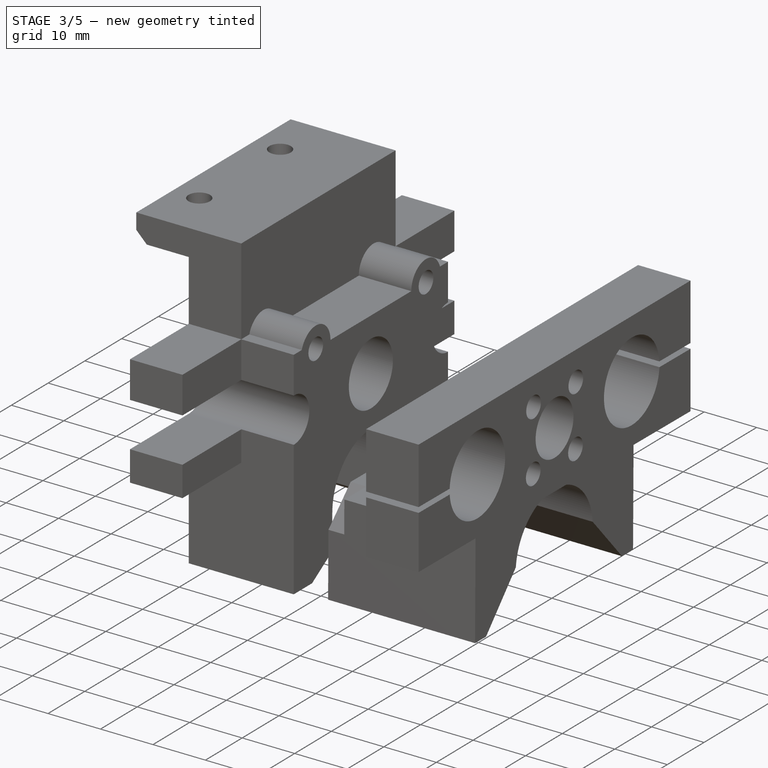
[diagram: stage 3 of 5 — iso view after this stage's code; geometry added in this stage tinted green]
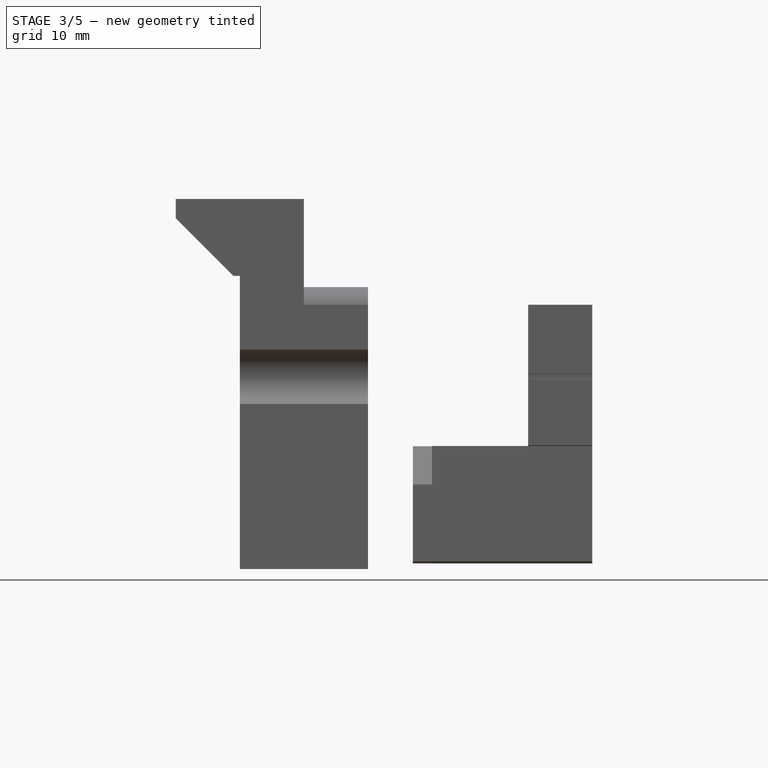
[diagram: stage 3 of 5 — front view after this stage's code; geometry added in this stage tinted green]
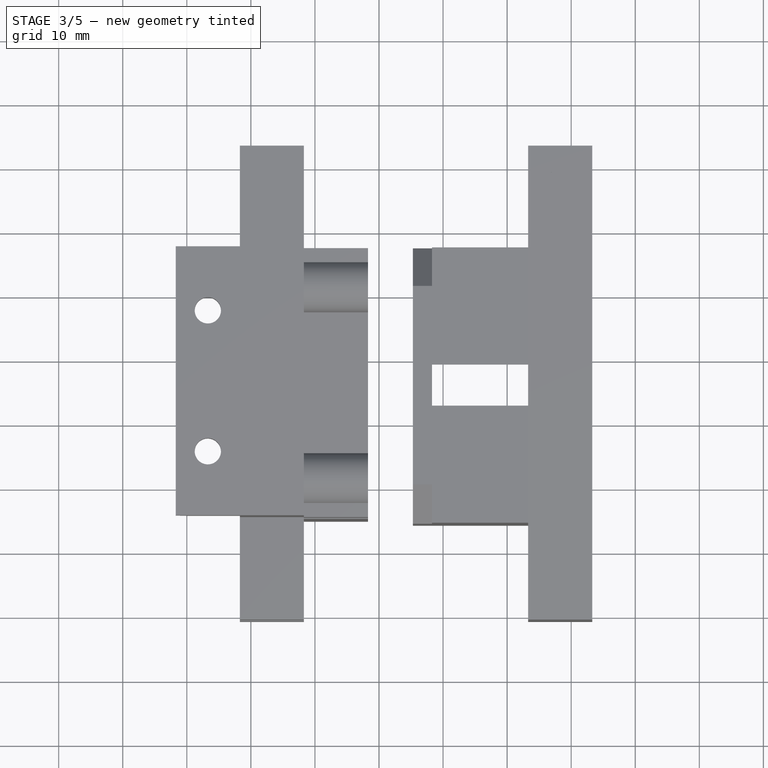
[diagram: stage 3 of 5 — top view after this stage's code; geometry added in this stage tinted green]
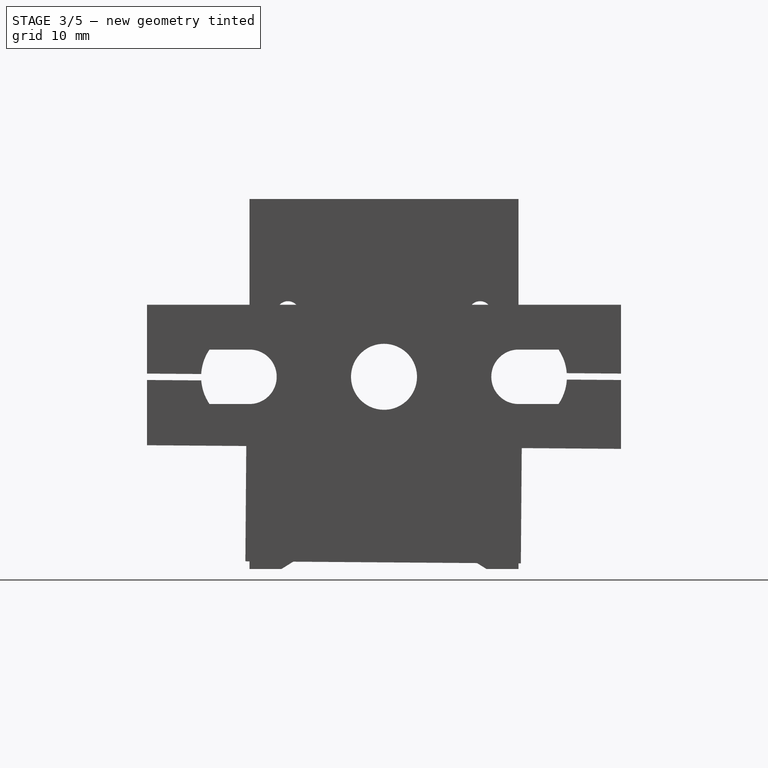
[diagram: stage 3 of 5 — right view after this stage's code; geometry added in this stage tinted green]
FEATURE [PartDesign::Body] Body  label="Nema17 Mount"
  AllowCompound = false
  Group = -> [DatumPlane,Copyaluprof_021,Sketch,VarSet,Pad,DatumPlane001,Sketch001,Pad001,Sketch002,Pad002,DatumPlane002,Sketch003,Pad003,DatumPlane003,Sketch004,Pocket,DatumPlane004,Sketch005,Pocket001,Chamfer,DatumPlane005,Sketch006,Pocket002,Sketch007,Pocket003,DatumPlane006,Sketch008,Pocket004]
  Origin = -> Origin
  Tip = -> Pocket004
FEATURE [PartDesign::ShapeBinder] CopyPocket004
  Placement = pos=(27.5,-8.53e-14,-1.563e-13) rot=(0,0,1;0rad)
  TraceSupport = false
FEATURE [PartDesign::ShapeBinder] CopyPocket005
  Placement = pos=(27.5,-8.53e-14,-1.563e-13) rot=(0,0,1;0rad)
  TraceSupport = false
FEATURE [PartDesign::Plane] DatumPlane007
  AttachmentSupport = -> [CopyPocket004,CopyPocket005]
  Length = 187.91
  MapMode = 45
  Placement = pos=(413.283,-23.2842,120.112) rot=(0.707104,0.002705,0.707104;3.13618rad)
  ResizeMode = 0
  Width = 111.463
FEATURE [Sketcher::SketchObject] Sketch009
  ArcFitTolerance = 1e-06
  AttachmentSupport = -> [DatumPlane007]
  ExternalGeometry = -> [CopyPocket005,CopyPocket004]
  FullyConstrained = true
  MakeInternals = false
  MapMode = 5
  Placement = pos=(413.283,-23.2842,120.112) rot=(0.707104,0.002705,0.707104;3.13618rad)
  expr: Constraints[3] = <<R_SET>>.LinearRodBearingDiameter
  sketch-geometry (12):
    g0: ArcOfCircle CenterX=6.2051 CenterY=21.7189 CenterZ=0 NormalX=0 NormalY=0 NormalZ=1 AngleXU=0 Radius=7.55 StartAngle=1.65333 EndAngle=7.80395
    g1: ArcOfCircle CenterX=6.52644 CenterY=-20.2798 CenterZ=0 NormalX=0 NormalY=0 NormalZ=1 AngleXU=0 Radius=7.55 StartAngle=4.79492 EndAngle=10.9455
    g2: LineSegment StartX=6.58267 StartY=37.7223 StartZ=0 EndX=6.58267 EndY=29.2595 EndZ=0
    g3: LineSegment StartX=5.5827 StartY=37.7146 StartZ=0 EndX=5.5827 EndY=29.2432 EndZ=0
    g4: LineSegment StartX=7.14885 StartY=-36.2756 StartZ=0 EndX=7.14885 EndY=-27.8042 EndZ=0
    g5: LineSegment StartX=6.14888 StartY=-36.2832 StartZ=0 EndX=6.14888 EndY=-27.8204 EndZ=0
    g6: LineSegment StartX=6.58267 StartY=37.7223 StartZ=0 EndX=17.3324 EndY=37.8045 EndZ=0
    g7: LineSegment StartX=17.3324 StartY=37.8045 StartZ=0 EndX=17.8985 EndY=-36.1933 EndZ=0
    g8: LineSegment StartX=17.8985 StartY=-36.1933 StartZ=0 EndX=7.14885 EndY=-36.2756 EndZ=0
    g9: LineSegment StartX=6.14888 StartY=-36.2832 StartZ=0 EndX=-4.60081 EndY=-36.3655 EndZ=0
    g10: LineSegment StartX=-4.60081 StartY=37.6367 StartZ=0 EndX=-4.60081 EndY=-36.3655 EndZ=0
    g11: LineSegment StartX=-4.60081 StartY=37.6367 StartZ=0 EndX=5.5827 EndY=37.7146 EndZ=0
  constraints (30):
    c: Coincident(g0,g-3)
    c: Coincident(g1,g-4)
    c: Equal(g0,g1)
    c: Diameter(g0) = 15.1
    c: Coincident(g2,g-5)
    c: Vertical(g2)
    c: Coincident(g3,g-6)
    c: Vertical(g3)
    c: Coincident(g4,g-8)
    c: Vertical(g4)
    c: Coincident(g5,g-7)
    c: Vertical(g5)
    c: Coincident(g0,g2)
    c: Coincident(g0,g3)
    c: Coincident(g1,g5)
    c: Coincident(g1,g4)
    c: Coincident(g6,g2)
    c: Coincident(g6,g-9)
    c: Coincident(g7,g6)
    c: Coincident(g7,g-11)
    c: Coincident(g8,g-11)
    c: Coincident(g8,g4)
    c: Coincident(g9,g5)
    c: Equal(g9,g8)
    c: Coincident(g10,g9)
    c: Vertical(g10)
    c: PointOnObject(g9,g-7)
    c: PointOnObject(g10,g-6)
    c: Coincident(g11,g10)
    c: Coincident(g11,g3)
FEATURE [App::VarSet] VarSet001  label="R_SET"
  LinearRodBearingDiameter = 15.1
  RunnerThickness = 10
  SyringeBasketBackThickness = 3
  SyringeBasketDepth = 25
  T8NutCentreHoleDia = 10.3
  T8NutRadialBoltDiameter = 16.26
  T8RadialNutHoleDia = 4
FEATURE [PartDesign::Pad] Pad004
  Direction = (1,1.5e-15,-5.42e-14)
  Length = 10
  Length2 = 10
  Placement = pos=(413.283,-23.2842,120.112) rot=(0.707104,0.002705,0.707104;3.13618rad)
  Profile = -> Sketch009
  ReferenceAxis = -> Sketch009 [N_Axis]
  Refine = true
  Suppressed = false
  Type = 0
  expr: Length = <<R_SET>>.RunnerThickness
FEATURE [PartDesign::Plane] DatumPlane008
  AttachmentSupport = -> [Pad004]
  Length = 187.91
  MapMode = 5
  Placement = pos=(423.283,-23.2842,120.112) rot=(0.707104,0.002705,0.707104;3.13618rad)
  ResizeMode = 0
  Width = 111.463
FEATURE [Sketcher::SketchObject] Sketch010
  ArcFitTolerance = 1e-06
  AttachmentSupport = -> [DatumPlane008]
  ExternalGeometry = -> [Pad004]
  FullyConstrained = true
  MakeInternals = false
  MapMode = 5
  Placement = pos=(423.283,-23.2842,120.112) rot=(0.707104,0.002705,0.707104;3.13618rad)
  expr: Constraints[26] = <<R_SET>>.T8RadialNutHoleDia
  expr: Constraints[4] = <<R_SET>>.T8NutCentreHoleDia
  expr: Constraints[6] = <<R_SET>>.T8NutRadialBoltDiameter
  sketch-geometry (12):
    g0: LineSegment [constr] StartX=6.2051 StartY=21.7189 StartZ=0 EndX=6.52644 EndY=-20.2798 EndZ=0
    g1: GeomPoint [constr] X=6.36577 Y=0.719537 Z=0
    g2: Circle CenterX=6.36577 CenterY=0.719537 CenterZ=0 NormalX=0 NormalY=0 NormalZ=1 AngleXU=0 Radius=5.15
    g3: Circle [constr] CenterX=6.36577 CenterY=0.719537 CenterZ=0 NormalX=0 NormalY=0 NormalZ=1 AngleXU=0 Radius=8.13
    g4: LineSegment [constr] StartX=0.616996 StartY=6.46832 StartZ=0 EndX=0.616996 EndY=-5.02924 EndZ=0
    g5: LineSegment [constr] StartX=0.616996 StartY=-5.02924 StartZ=0 EndX=12.1146 EndY=-5.02924 EndZ=0
    g6: LineSegment [constr] StartX=12.1146 StartY=-5.02924 StartZ=0 EndX=12.1146 EndY=6.46832 EndZ=0
    g7: LineSegment [constr] StartX=12.1146 StartY=6.46832 StartZ=0 EndX=0.616996 EndY=6.46832 EndZ=0
    g8: Circle CenterX=0.616996 CenterY=6.46832 CenterZ=0 NormalX=0 NormalY=0 NormalZ=1 AngleXU=0 Radius=2
    g9: Circle CenterX=0.616996 CenterY=-5.02924 CenterZ=0 NormalX=0 NormalY=0 NormalZ=1 AngleXU=0 Radius=2
    g10: Circle CenterX=12.1146 CenterY=-5.02924 CenterZ=0 NormalX=0 NormalY=0 NormalZ=1 AngleXU=0 Radius=2
    g11: Circle CenterX=12.1146 CenterY=6.46832 CenterZ=0 NormalX=0 NormalY=0 NormalZ=1 AngleXU=0 Radius=2
  constraints (27):
    c: Coincident(g0,g-6)
    c: Coincident(g0,g-5)
    c: Symmetric(g0,g0,g1)
    c: Coincident(g2,g1)
    c: Diameter(g2) = 10.3
    c: Coincident(g3,g1)
    c: Diameter(g3) = 16.26
    c: PointOnObject(g4,g3)
    c: PointOnObject(g4,g3)
    c: Coincident(g5,g4)
    c: PointOnObject(g5,g3)
    c: Coincident(g6,g5)
    c: PointOnObject(g6,g3)
    c: Vertical(g6)
    c: Coincident(g7,g6)
    c: Coincident(g7,g4)
    c: Equal(g7,g6)
    c: Equal(g6,g5)
    c: Equal(g5,g4)
    c: Coincident(g8,g4)
    c: Coincident(g9,g4)
    c: Coincident(g10,g5)
    c: Coincident(g11,g6)
    c: Equal(g11,g10)
    c: Equal(g10,g9)
    c: Equal(g9,g8)
    c: Diameter(g8) = 4
FEATURE [PartDesign::Pocket] Pocket005
  BaseFeature = -> Pad004
  Direction = (-1,-1.6e-15,5.51e-14)
  Length = 5
  Length2 = 5
  Placement = pos=(413.283,-23.2842,120.112) rot=(0.707104,0.002705,0.707104;3.13618rad)
  Profile = -> Sketch010
  ReferenceAxis = -> Sketch010 [N_Axis]
  Refine = true
  Suppressed = false
  Type = 2
FEATURE [Sketcher::SketchObject] Sketch011
  ArcFitTolerance = 1e-06
  AttachmentSupport = -> [DatumPlane008]
  ExternalGeometry = -> [Pocket005]
  FullyConstrained = true
  MakeInternals = false
  MapMode = 5
  Placement = pos=(423.283,-23.2842,120.112) rot=(0.707104,0.002705,0.707104;3.13618rad)
  sketch-geometry (18):
    g0: GeomPoint X=-4.60081 Y=0.635629 Z=0
    g1: LineSegment [constr] StartX=-4.60081 StartY=0.635629 StartZ=0 EndX=-4.60081 EndY=37.6367 EndZ=0
    g2: LineSegment [constr] StartX=-4.60081 StartY=0.635629 StartZ=0 EndX=-4.60081 EndY=-36.3655 EndZ=0
    g3: GeomPoint [constr] X=-4.60081 Y=19.1362 Z=0
    g4: GeomPoint [constr] X=-4.60081 Y=-17.8649 Z=0
    g5: LineSegment [constr] StartX=-4.60081 StartY=19.1362 StartZ=0 EndX=-22.6008 EndY=19.1362 EndZ=0
    g6: LineSegment [constr] StartX=-4.60081 StartY=-17.8649 StartZ=0 EndX=-22.6008 EndY=-17.8649 EndZ=0
    g7: LineSegment [constr] StartX=-4.60081 StartY=0.635629 StartZ=0 EndX=-14.6008 EndY=0.635629 EndZ=0
    g8: ArcOfCircle CenterX=-14.6008 CenterY=0.635629 CenterZ=0 NormalX=0 NormalY=0 NormalZ=1 AngleXU=0 Radius=10.5 StartAngle=4.79901 EndAngle=5.97334
    g9: LineSegment StartX=-22.6008 StartY=19.1362 StartZ=0 EndX=-13.6924 EndY=11.0963 EndZ=0
    g10: LineSegment StartX=-22.6008 StartY=-17.8649 StartZ=0 EndX=-13.6924 EndY=-9.825 EndZ=0
    g11: LineSegment StartX=-22.6008 StartY=19.1362 StartZ=0 EndX=-22.6008 EndY=22.1362 EndZ=0
    g12: LineSegment StartX=-22.6008 StartY=-17.8649 StartZ=0 EndX=-22.6008 EndY=-20.8649 EndZ=0
    g13: LineSegment StartX=-22.6008 StartY=22.1362 StartZ=0 EndX=-4.60081 EndY=22.1362 EndZ=0
    g14: LineSegment StartX=-22.6008 StartY=-20.8649 StartZ=0 EndX=-4.60081 EndY=-20.8649 EndZ=0
    g15: LineSegment StartX=-4.60081 StartY=-20.8649 StartZ=0 EndX=-4.60081 EndY=-2.56593 EndZ=0
    g16: LineSegment StartX=-4.60081 StartY=22.1362 StartZ=0 EndX=-4.60081 EndY=3.83719 EndZ=0
    g17: ArcOfCircle CenterX=-14.6008 CenterY=0.635629 CenterZ=0 NormalX=0 NormalY=0 NormalZ=1 AngleXU=0 Radius=10.5 StartAngle=0.309845 EndAngle=1.48417
  constraints (46):
    c: Symmetric(g-3,g-3,g0)
    c: Coincident(g1,g0)
    c: Coincident(g1,g-3)
    c: Coincident(g2,g0)
    c: Coincident(g2,g-3)
    c: Symmetric(g1,g1,g3)
    c: Symmetric(g2,g2,g4)
    c: Distance(g5) = 18
    c: Coincident(g5,g3)
    c: Horizontal(g5)
    c: Coincident(g6,g4)
    c: Horizontal(g6)
    c: Equal(g5,g6)
    c: Distance(g7) = 10
    c: Coincident(g7,g0)
    c: Horizontal(g7)
    c: Diameter(g8) = 21
    c: Coincident(g8,g7)
    c: Coincident(g9,g5)
    c: Distance(g9,g9) = 12
    c: Coincident(g10,g6)
    c: Distance(g10,g10) = 12
    c: Coincident(g17,g9)
    c: Coincident(g8,g10)
    c: Distance(g11) = 3
    c: Coincident(g11,g5)
    c: Vertical(g11)
    c: Distance(g12) = 3
    c: Coincident(g12,g6)
    c: Vertical(g12)
    c: Coincident(g13,g11)
    c: PointOnObject(g13,g1)
    c: Horizontal(g13)
    c: Coincident(g14,g12)
    c: PointOnObject(g14,g2)
    c: Horizontal(g14)
    c: Coincident(g15,g14)
    c: PointOnObject(g15,g8)
    c: Vertical(g15)
    c: Coincident(g16,g13)
    c: PointOnObject(g16,g17)
    c: Vertical(g16)
    c: Equal(g8,g17)
    c: PointOnObject(g8,g2)
    c: PointOnObject(g17,g1)
    c: Coincident(g8,g17)
FEATURE [PartDesign::Pad] Pad005
  BaseFeature = -> Pocket005
  Direction = (1,1.6e-15,-5.51e-14)
  Length = 25
  Length2 = 10
  Placement = pos=(413.283,-23.2842,120.112) rot=(0.707104,0.002705,0.707104;3.13618rad)
  Profile = -> Sketch011
  ReferenceAxis = -> Sketch011 [N_Axis]
  Refine = true
  Reversed = true
  Suppressed = false
  Type = 0
  expr: Length = <<R_SET>>.SyringeBasketDepth
FEATURE [App::VarSet] VarSet002  label="R_BoltOn_SET"
  BoltOnHoleDia = 3.5
  BoltOnHoleSep = 30
  LinearRodBearingDiameter = 15.1
  RunnerThickness = 10
  SyringeBasketBackThickness = 3
  SyringeBasketDepth = 25
  T8NutCentreHoleDia = 10.3
  T8NutRadialBoltDiameter = 16.26
  T8RadialNutHoleDia = 4
FEATURE [PartDesign::Plane] DatumPlane012
  AttachmentSupport = -> [Pad008]
  Length = 187.91
  MapMode = 45
  Placement = pos=(398.283,-24.0094,108.411) rot=(0.707104,0.002705,0.707104;3.13618rad)
  ResizeMode = 0
  Width = 111.463
FEATURE [Sketcher::SketchObject] Sketch017
  ArcFitTolerance = 1e-06
  AttachmentSupport = -> [DatumPlane012]
  ExternalGeometry = -> [Pad008]
  FullyConstrained = true
  MakeInternals = false
  MapMode = 5
  Placement = pos=(398.283,-24.0094,108.411) rot=(0.707104,0.002705,0.707104;3.13618rad)
  expr: Constraints[11] = <<R_BoltOn_SET>>.BoltOnHoleSep / 2
  expr: Constraints[15] = <<R_BoltOn_SET>>.BoltOnHoleDia
  sketch-geometry (7):
    g0: LineSegment [constr] StartX=7.10486 StartY=3.20156 StartZ=0 EndX=7.10486 EndY=-3.20156 EndZ=0
    g1: GeomPoint [constr] X=7.10486 Y=-9e-15 Z=0
    g2: LineSegment [constr] StartX=7.10486 StartY=-8.9e-15 StartZ=0 EndX=3.10486 EndY=0 EndZ=0
    g3: LineSegment [constr] StartX=3.10486 StartY=0 StartZ=0 EndX=3.10486 EndY=15 EndZ=0
    g4: LineSegment [constr] StartX=3.10486 StartY=0 StartZ=0 EndX=3.10486 EndY=-15 EndZ=0
    g5: Circle CenterX=3.10486 CenterY=15 CenterZ=0 NormalX=0 NormalY=0 NormalZ=1 AngleXU=0 Radius=1.75
    g6: Circle CenterX=3.10486 CenterY=-15 CenterZ=0 NormalX=0 NormalY=0 NormalZ=1 AngleXU=0 Radius=1.75
  constraints (16):
    c: Coincident(g0,g-3)
    c: Coincident(g0,g-4)
    c: Symmetric(g0,g0,g1)
    c: Distance(g2) = 4
    c: Symmetric(g0,g0,g2)
    c: PointOnObject(g2,g-1)
    c: Coincident(g3,g2)
    c: Vertical(g3)
    c: Coincident(g4,g2)
    c: Vertical(g4)
    c: Equal(g4,g3)
    c: DistanceY(g3,g3) = 15
    c: Coincident(g5,g3)
    c: Coincident(g6,g4)
    c: Equal(g5,g6)
    c: Diameter(g6) = 3.5
FEATURE [PartDesign::Pocket] Pocket008
  BaseFeature = -> Pad008
  Direction = (-1,1.8e-15,-4.445e-13)
  Length = 5
  Length2 = 5
  Placement = pos=(413.283,-23.2842,120.112) rot=(0.707104,0.002705,0.707104;3.13618rad)
  Profile = -> Sketch017
  ReferenceAxis = -> Sketch017 [N_Axis]
  Refine = true
  Reversed = true
  Suppressed = false
  Type = 1
FEATURE [PartDesign::Chamfer] Chamfer001
  Angle = 45
  Base = -> Pocket008 [Edge56,Edge65]
  BaseFeature = -> Pocket008
  ChamferType = 0
  FlipDirection = false
  Placement = pos=(413.283,-23.2842,120.112) rot=(0.707104,0.002705,0.707104;3.13618rad)
  Refine = true
  Size = 6
  Size2 = 1
  SupportTransform = false
  Suppressed = false
  UseAllEdges = false
FEATURE [PartDesign::Body] Body001  label="Runner"
  AllowCompound = false
  Group = -> [DatumPlane007,CopyPocket004,CopyPocket005,Sketch009,Pad004,DatumPlane008,Sketch010,Pocket005,Sketch011,Pad005,DatumPlane009,Sketch012,Pad006,Sketch013,Pocket006,Chamfer002,Chamfer003,VarSet001]
  Origin = -> Origin001
  Tip = -> Chamfer003
FEATURE [PartDesign::Chamfer] Chamfer004
  Angle = 45
  Base = -> Chamfer001 [Edge2,Edge7]
  BaseFeature = -> Chamfer001
  ChamferType = 0
  FlipDirection = false
  Placement = pos=(413.283,-23.2842,120.112) rot=(0.707104,0.002705,0.707104;3.13618rad)
  Refine = true
  Size = 4
  Size2 = 1
  SupportTransform = false
  Suppressed = false
  UseAllEdges = false
FEATURE [PartDesign::Plane] DatumPlane013
  AttachmentSupport = -> [Chamfer004]
  Length = 487.895
  MapMode = 45
  Placement = pos=(418.283,-23.955,115.516) rot=(-1,0,0;0.007651rad)
  ResizeMode = 0
  Width = 127.12
FEATURE [Sketcher::SketchObject] Sketch018
  ArcFitTolerance = 1e-06
  AttachmentSupport = -> [DatumPlane013]
  ExternalGeometry = -> [Chamfer004]
  FullyConstrained = true
  MakeInternals = false
  MapMode = 5
  Placement = pos=(418.283,-23.955,115.516) rot=(-1,0,0;0.007651rad)
  sketch-geometry (4):
    g0: LineSegment [constr] StartX=5.68e-14 StartY=37.0011 StartZ=0 EndX=0 EndY=32.0011 EndZ=0
    g1: LineSegment [constr] StartX=1.137e-13 StartY=-37.0011 StartZ=0 EndX=0 EndY=-32.0011 EndZ=0
    g2: Circle CenterX=0 CenterY=32.0011 CenterZ=0 NormalX=0 NormalY=0 NormalZ=1 AngleXU=0 Radius=1.55
    g3: Circle CenterX=0 CenterY=-32.0011 CenterZ=0 NormalX=0 NormalY=0 NormalZ=1 AngleXU=0 Radius=1.55
  constraints (10):
    c: Distance(g0) = 5
    c: Symmetric(g-4,g-4,g0)
    c: PointOnObject(g0,g-2)
    c: Distance(g1) = 5
    c: Symmetric(g-3,g-3,g1)
    c: PointOnObject(g1,g-2)
    c: Diameter(g2) = 3.1
    c: Coincident(g2,g0)
    c: Diameter(g3) = 3.1
    c: Coincident(g3,g1)
FEATURE [PartDesign::Pocket] Pocket009
  BaseFeature = -> Chamfer004
  Direction = (7.224e-13,-0.007651,-0.999971)
  Length = 11
  Length2 = 5
  Placement = pos=(413.283,-23.2842,120.112) rot=(0.707104,0.002705,0.707104;3.13618rad)
  Profile = -> Sketch018
  ReferenceAxis = -> Sketch018 [N_Axis]
  Refine = true
  Reversed = true
  Suppressed = false
  Type = 1
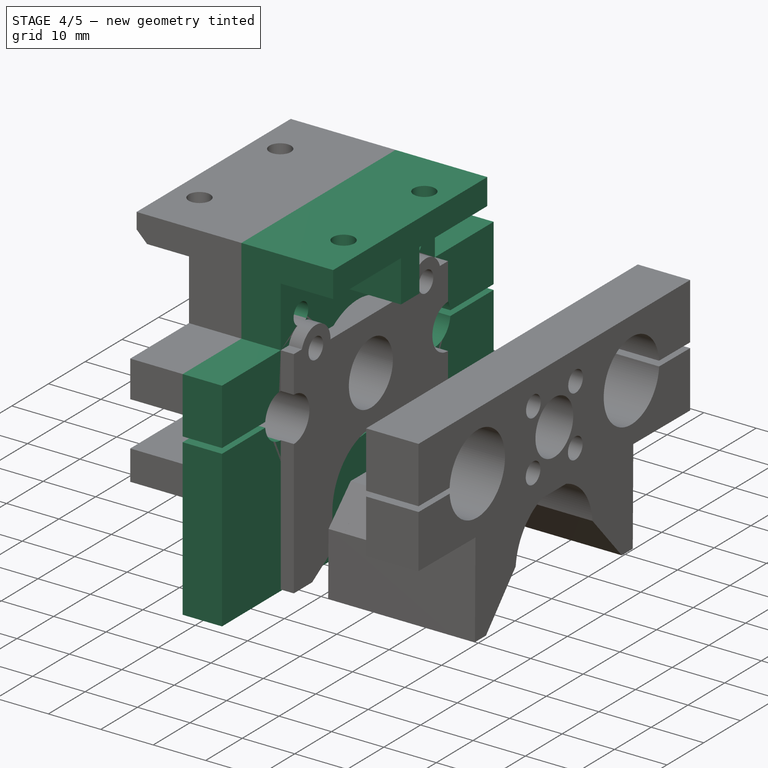
[diagram: stage 4 of 5 — iso view after this stage's code; geometry added in this stage tinted green]
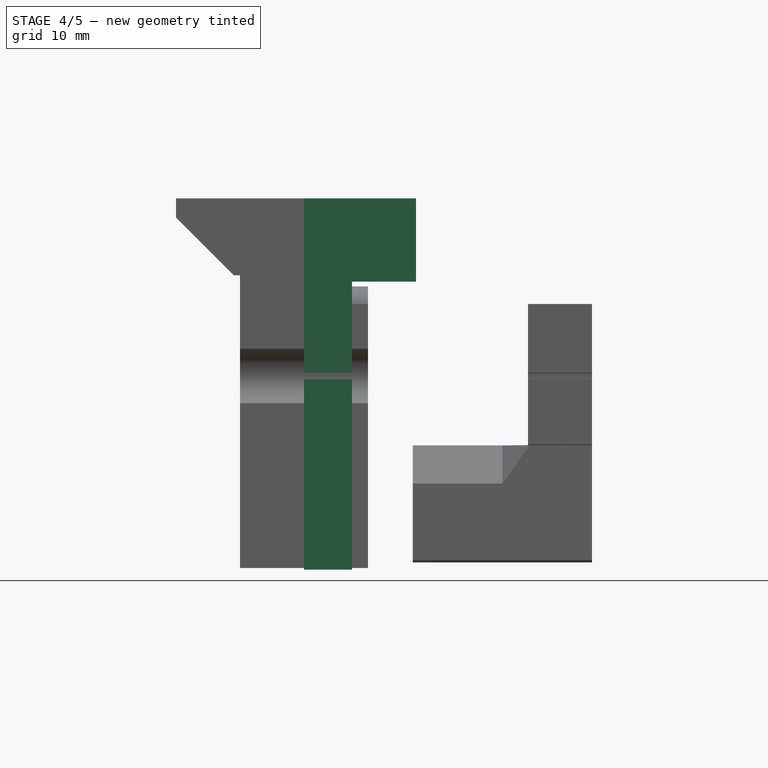
[diagram: stage 4 of 5 — front view after this stage's code; geometry added in this stage tinted green]
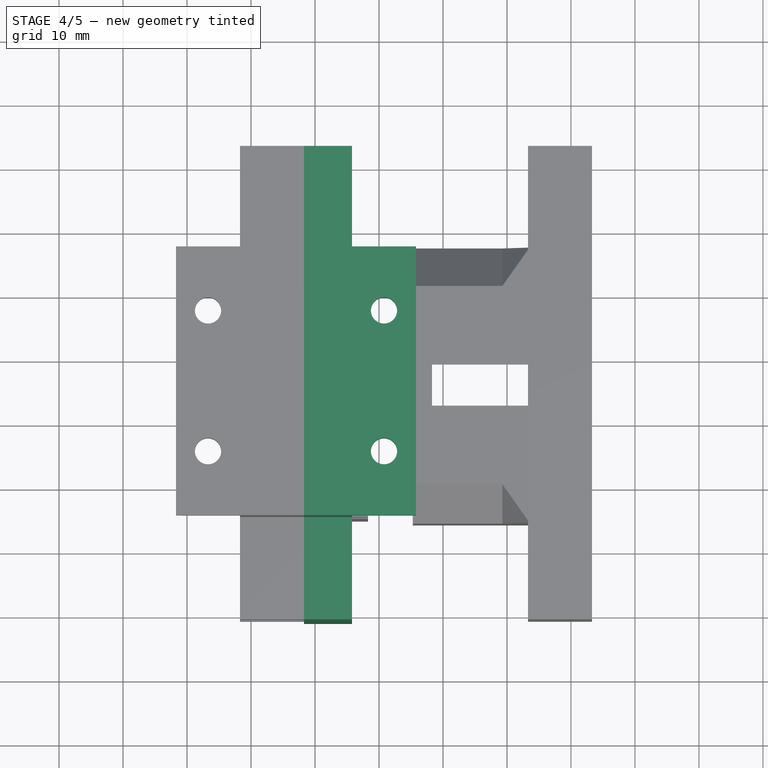
[diagram: stage 4 of 5 — top view after this stage's code; geometry added in this stage tinted green]
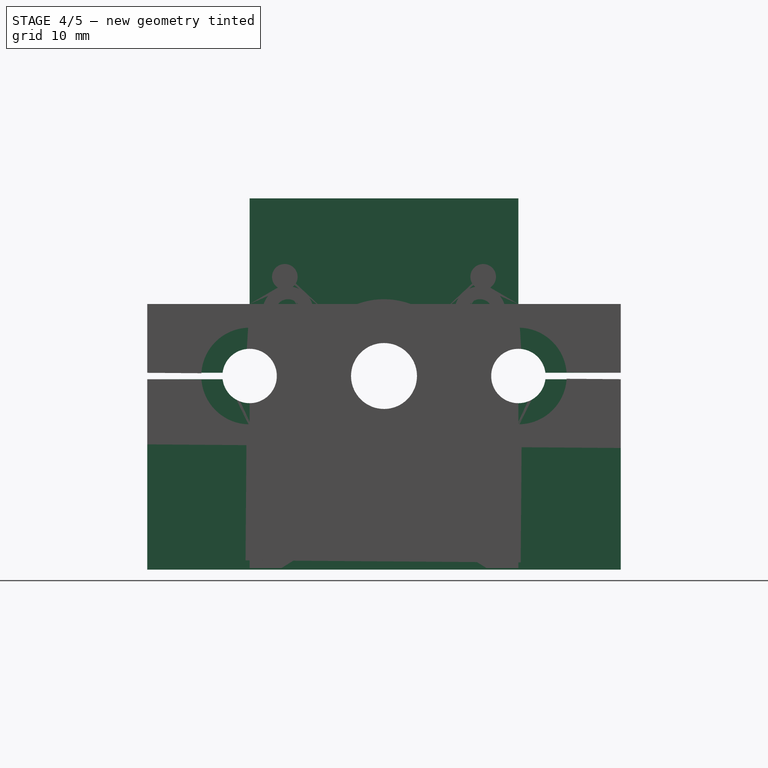
[diagram: stage 4 of 5 — right view after this stage's code; geometry added in this stage tinted green]
FEATURE [Part::Feature] aluprof_20
  Placement = pos=(85.783,-13.955,86.233) rot=(0,0,1;0rad)
  axis_d = (1,0,0)
  axis_h = (0,0,1)
  axis_w = (0,1,0)
  d0_cen = 0
  d_o = (6) [(0,0,0),(0,0,0),(150,0,0),(150,0,0),(300,0,0),(300,0,0)]
  h0_cen = 1
  h_o = (4) [(0,0,0),(0,0,-3.65),(0,0,-8.2),(0,0,-10)]
  w0_cen = 1
  w_o = (4) [(0,0,0),(0,-3.65,0),(0,-8.2,0),(0,-10,0)]
  shape: bbox 300 x 20 x 20 mm, 39 faces (baked)
FEATURE [Part::Feature] aluprof_021
  Placement = pos=(85.783,-33.955,86.233) rot=(0,0,1;0rad)
  axis_d = (1,0,0)
  axis_h = (0,0,1)
  axis_w = (0,1,0)
  d0_cen = 0
  d_o = (6) [(0,0,0),(0,0,0),(150,0,0),(150,0,0),(300,0,0),(300,0,0)]
  h0_cen = 1
  h_o = (4) [(0,0,0),(0,0,-3.65),(0,0,-8.2),(0,0,-10)]
  w0_cen = 1
  w_o = (4) [(0,0,0),(0,-3.65,0),(0,-8.2,0),(0,-10,0)]
  shape: bbox 300 x 20 x 20 mm, 39 faces (baked)
FEATURE [PartDesign::ShapeBinder] Copyaluprof_021
  Placement = pos=(385.783,-33.955,86.233) rot=(0,0,1;0rad)
  TraceSupport = false
FEATURE [PartDesign::Plane] DatumPlane
  AttachmentSupport = -> [Copyaluprof_021]
  Length = 110.779
  MapMode = 5
  Placement = pos=(385.783,-33.955,86.233) rot=(0.57735,0.57735,0.57735;2.0944rad)
  ResizeMode = 0
  Width = 204.057
FEATURE [Sketcher::SketchObject] Sketch
  ArcFitTolerance = 1e-06
  AttachmentSupport = -> [DatumPlane]
  ExternalGeometry = -> [Copyaluprof_021]
  FullyConstrained = true
  MakeInternals = false
  MapMode = 5
  Placement = pos=(385.783,-33.955,86.233) rot=(0.57735,0.57735,0.57735;2.0944rad)
  expr: Constraints[13] = <<N17M SET>>.T8SeparationFromCentre
  expr: Constraints[17] = <<N17M SET>>.T8RodHoleDia
  expr: Constraints[1] = <<N17M SET>>.MountBaseW
  expr: Constraints[23] = <<N17M SET>>.BaseHeight
  expr: Constraints[35] = <<N17M SET>>.StepInLen
  expr: Constraints[36] = <<N17M SET>>.StepUpLen
  expr: Constraints[48] = <<N17M SET>>.NemaBoltSeparation
  expr: Constraints[54] = <<N17M SET>>.MotorBoltHoleDia
  expr: Constraints[64] = <<N17M SET>>.T8RodGap / 2
  expr: Constraints[67] = <<N17M SET>>.T8RodGap / 2
  expr: Constraints[6] = <<N17M SET>>.CentralHoleHeight
  expr: Constraints[71] = <<N17M SET>>.T8RodGap
  expr: Constraints[73] = <<N17M SET>>.T8RodGap
  expr: Constraints[8] = <<N17M SET>>.CentralHoleDia
  sketch-geometry (36):
    g0: LineSegment StartX=-27 StartY=10 StartZ=0 EndX=47 EndY=10 EndZ=0
    g1: GeomPoint X=10 Y=10 Z=0
    g2: LineSegment [constr] StartX=10 StartY=10 StartZ=0 EndX=10 EndY=40.25 EndZ=0
    g3: Circle CenterX=10 CenterY=40.25 CenterZ=0 NormalX=0 NormalY=0 NormalZ=1 AngleXU=0 Radius=12
    g4: LineSegment [constr] StartX=10 StartY=40.25 StartZ=0 EndX=31 EndY=40.25 EndZ=0
    g5: LineSegment [constr] StartX=10 StartY=40.25 StartZ=0 EndX=-11 EndY=40.25 EndZ=0
    g6: ArcOfCircle CenterX=31 CenterY=40.25 CenterZ=0 NormalX=0 NormalY=0 NormalZ=1 AngleXU=0 Radius=4.25 StartAngle=0.11792 EndAngle=6.16527
    g7: ArcOfCircle CenterX=-11 CenterY=40.25 CenterZ=0 NormalX=0 NormalY=0 NormalZ=1 AngleXU=0 Radius=4.25 StartAngle=3.25951 EndAngle=9.30686
    g8: LineSegment StartX=-27 StartY=10 StartZ=0 EndX=-27 EndY=39.75 EndZ=0
    g9: LineSegment StartX=47 StartY=10 StartZ=0 EndX=47 EndY=39.75 EndZ=0
    g10: LineSegment StartX=-27 StartY=51.5 StartZ=0 EndX=-11 EndY=51.5 EndZ=0
    g11: LineSegment StartX=-11 StartY=51.5 StartZ=0 EndX=-11 EndY=68 EndZ=0
    g12: LineSegment StartX=47 StartY=51.5 StartZ=0 EndX=31 EndY=51.5 EndZ=0
    g13: LineSegment StartX=31 StartY=51.5 StartZ=0 EndX=31 EndY=68 EndZ=0
    g14: LineSegment StartX=-11 StartY=68 StartZ=0 EndX=31 EndY=68 EndZ=0
    g15: LineSegment [constr] StartX=-5.5 StartY=55.75 StartZ=0 EndX=-5.5 EndY=24.75 EndZ=0
    g16: LineSegment [constr] StartX=-5.5 StartY=24.75 StartZ=0 EndX=25.5 EndY=24.75 EndZ=0
    g17: LineSegment [constr] StartX=25.5 StartY=24.75 StartZ=0 EndX=25.5 EndY=55.75 EndZ=0
    g18: LineSegment [constr] StartX=25.5 StartY=55.75 StartZ=0 EndX=-5.5 EndY=55.75 EndZ=0
    g19: GeomPoint [constr] X=10 Y=40.25 Z=0
    g20: Circle CenterX=-5.5 CenterY=55.75 CenterZ=0 NormalX=0 NormalY=0 NormalZ=1 AngleXU=0 Radius=2
    g21: Circle CenterX=25.5 CenterY=55.75 CenterZ=0 NormalX=0 NormalY=0 NormalZ=1 AngleXU=0 Radius=2
    g22: Circle CenterX=25.5 CenterY=24.75 CenterZ=0 NormalX=0 NormalY=0 NormalZ=1 AngleXU=0 Radius=2
    g23: Circle CenterX=-5.5 CenterY=24.75 CenterZ=0 NormalX=0 NormalY=0 NormalZ=1 AngleXU=0 Radius=2
    g24: LineSegment [constr] StartX=-11 StartY=40.25 StartZ=0 EndX=-27 EndY=40.25 EndZ=0
    g25: LineSegment [constr] StartX=31 StartY=40.25 StartZ=0 EndX=47 EndY=40.25 EndZ=0
    g26: LineSegment [constr] StartX=-27 StartY=40.25 StartZ=0 EndX=-27 EndY=40.75 EndZ=0
    g27: LineSegment [constr] StartX=47 StartY=40.25 StartZ=0 EndX=47 EndY=40.75 EndZ=0
    g28: LineSegment StartX=-27 StartY=40.75 StartZ=0 EndX=-15.2205 EndY=40.75 EndZ=0
    g29: LineSegment [constr] StartX=-27 StartY=40.75 StartZ=0 EndX=-27 EndY=39.75 EndZ=0
    g30: LineSegment [constr] StartX=47 StartY=40.75 StartZ=0 EndX=47 EndY=39.75 EndZ=0
    g31: LineSegment StartX=-27 StartY=39.75 StartZ=0 EndX=-15.2205 EndY=39.75 EndZ=0
    g32: LineSegment StartX=47 StartY=40.75 StartZ=0 EndX=35.2205 EndY=40.75 EndZ=0
    g33: LineSegment StartX=47 StartY=39.75 StartZ=0 EndX=35.2205 EndY=39.75 EndZ=0
    g34: LineSegment StartX=-27 StartY=40.75 StartZ=0 EndX=-27 EndY=51.5 EndZ=0
    g35: LineSegment StartX=47 StartY=40.75 StartZ=0 EndX=47 EndY=51.5 EndZ=0
  constraints (95):
    c: Horizontal(g0)
    c: DistanceX(g0,g0) = 74
    c: Symmetric(g0,g0,g1)
    c: Coincident(g1,g-4)
    c: Coincident(g2,g1)
    c: Vertical(g2)
    c: DistanceY(g2,g2) = 30.25
    c: Coincident(g3,g2)
    c: Diameter(g3) = 24
    c: Coincident(g4,g2)
    c: Horizontal(g4)
    c: Coincident(g5,g2)
    c: Horizontal(g5)
    c: DistanceX(g5,g5) = 21
    c: Equal(g5,g4)
    c: Coincident(g6,g4)
    c: Coincident(g7,g5)
    c: Diameter(g7) = 8.5
    c: Equal(g7,g6)
    c: Coincident(g8,g0)
    c: Vertical(g8)
    c: Coincident(g9,g0)
    c: Vertical(g9)
    c: DistanceY(g8,g34) = 41.5
    c: Coincident(g10,g34)
    c: Horizontal(g10)
    c: Coincident(g11,g10)
    c: Vertical(g11)
    c: Coincident(g12,g35)
    c: Horizontal(g12)
    c: Coincident(g13,g12)
    c: Vertical(g13)
    c: Coincident(g14,g11)
    c: Coincident(g14,g13)
    c: Horizontal(g14)
    c: DistanceX(g10,g10) = 16
    c: DistanceY(g11,g11) = 16.5
    c: Equal(g10,g12)
    c: Coincident(g15,g16)
    c: Coincident(g16,g17)
    c: Coincident(g17,g18)
    c: Coincident(g18,g15)
    c: Vertical(g15)
    c: Vertical(g17)
    c: Horizontal(g16)
    c: Horizontal(g18)
    c: Symmetric(g17,g15,g19)
    c: Coincident(g19,g2)
    c: DistanceX(g18,g18) = 31
    c: Equal(g18,g15)
    c: Coincident(g20,g15)
    c: Coincident(g21,g17)
    c: Coincident(g22,g16)
    c: Coincident(g23,g15)
    c: Diameter(g20) = 4
    c: Equal(g20,g21)
    c: Equal(g21,g22)
    c: Equal(g22,g23)
    c: Coincident(g24,g5)
    c: Horizontal(g24)
    c: Coincident(g25,g4)
    c: Horizontal(g25)
    c: Coincident(g26,g24)
    c: PointOnObject(g26,g34)
    c: DistanceY(g26,g26) = 0.5
    c: Coincident(g27,g25)
    c: PointOnObject(g27,g35)
    c: DistanceY(g27,g27) = 0.5
    c: Coincident(g28,g26)
    c: Horizontal(g28)
    c: Coincident(g29,g26)
    c: Distance(g29,g29) = 1
    c: Coincident(g30,g27)
    c: DistanceY(g30,g30) = 1
    c: Coincident(g31,g29)
    c: Horizontal(g31)
    c: Coincident(g32,g27)
    c: Horizontal(g32)
    c: Coincident(g33,g30)
    c: Horizontal(g33)
    c: Coincident(g7,g28)
    c: Coincident(g7,g31)
    c: Coincident(g8,g29)
    c: Coincident(g6,g32)
    c: Coincident(g6,g33)
    c: Perpendicular(g10,g34)
    c: Parallel(g29,g8)
    c: PointOnObject(g34,g28)
    c: Coincident(g9,g30)
    c: Parallel(g30,g9)
    c: Perpendicular(g35,g12)
    c: PointOnObject(g35,g32)
    c: Equal(g11,g13)
    c: PointOnObject(g25,g30)
    c: PointOnObject(g24,g29)
FEATURE [App::VarSet] VarSet  label="N17M SET"
  BaseHeight = 41.5
  COntrolSystemMountingHoleDepth = 6
  CentralHoleDia = 24
  CentralHoleHeight = 30.25
  ControlSystemMountingHoleDia = 4
  ControlSystemMountingHoleSep = 30
  EndStopHoleDepth = 5
  EndStopHoleDia = 4.1
  EndStopMountHoleSeparation = 22
  EndStopMountHolesInsetLen = 7.5
  ExtrusionMountPadHoleDia = 4.1
  ExtrusionMountPadHoleSep = 22
  ExtrusionMountPadThickness = 5
  ExtrusionMountPadW = 10
  MotorBoltHoleDia = 4
  MountBaseW = 74
  MountThickness = 7.5
  NemaBoltSeparation = 31
  StepInLen = 16
  StepUpLen = 16.5
  T8PadLength = 27.5
  T8RodGap = 1
  T8RodHoleDia = 8.5
  T8SeparationFromCentre = 21
FEATURE [PartDesign::Pad] Pad
  Direction = (1,0,0)
  Length = 7.5
  Length2 = 10
  Placement = pos=(385.783,-33.955,86.233) rot=(0.57735,0.57735,0.57735;2.0944rad)
  Profile = -> Sketch
  ReferenceAxis = -> Sketch [N_Axis]
  Refine = true
  Reversed = true
  Suppressed = false
  Type = 0
  expr: Length = <<N17M SET>>.MountThickness
FEATURE [PartDesign::Plane] DatumPlane001
  AttachmentSupport = -> [Pad]
  Length = 124.774
  MapMode = 5
  Placement = pos=(385.783,-33.955,154.233) rot=(0,0,-1;1.5708rad)
  ResizeMode = 0
  Width = 477.102
FEATURE [Sketcher::SketchObject] Sketch001
  ArcFitTolerance = 1e-06
  AttachmentSupport = -> [DatumPlane001]
  ExternalGeometry = -> [Pad]
  FullyConstrained = true
  MakeInternals = false
  MapMode = 5
  Placement = pos=(385.783,-33.955,154.233) rot=(0,0,-1;1.5708rad)
  expr: Constraints[17] = <<N17M SET>>.ExtrusionMountPadHoleSep / 2
  expr: Constraints[18] = <<N17M SET>>.ExtrusionMountPadHoleSep / 2
  expr: Constraints[21] = <<N17M SET>>.ExtrusionMountPadHoleDia
  expr: Constraints[9] = <<N17M SET>>.ExtrusionMountPadW
  sketch-geometry (11):
    g0: LineSegment StartX=-31 StartY=0 StartZ=0 EndX=11 EndY=0 EndZ=0
    g1: LineSegment StartX=11 StartY=0 StartZ=0 EndX=11 EndY=10 EndZ=0
    g2: LineSegment StartX=11 StartY=10 StartZ=0 EndX=-31 EndY=10 EndZ=0
    g3: LineSegment StartX=-31 StartY=10 StartZ=0 EndX=-31 EndY=0 EndZ=0
    g4: GeomPoint X=-31 Y=5 Z=0
    g5: LineSegment [constr] StartX=-31 StartY=5 StartZ=0 EndX=11 EndY=5 EndZ=0
    g6: GeomPoint [constr] X=-10 Y=5 Z=0
    g7: GeomPoint [constr] X=-21 Y=5 Z=0
    g8: GeomPoint [constr] X=1 Y=5 Z=0
    g9: Circle CenterX=-21 CenterY=5 CenterZ=0 NormalX=0 NormalY=0 NormalZ=1 AngleXU=0 Radius=2.05
    g10: Circle CenterX=1 CenterY=5 CenterZ=0 NormalX=0 NormalY=0 NormalZ=1 AngleXU=0 Radius=2.05
  constraints (23):
    c: Coincident(g0,g1)
    c: Coincident(g1,g2)
    c: Coincident(g2,g3)
    c: Coincident(g3,g0)
    c: Horizontal(g0)
    c: Horizontal(g2)
    c: Vertical(g1)
    c: Vertical(g3)
    c: Coincident(g0,g-5)
    c: DistanceY(g3,g3) = 10
    c: PointOnObject(g-3,g1)
    c: Symmetric(g3,g3,g4)
    c: Coincident(g5,g4)
    c: Symmetric(g1,g1,g5)
    c: Symmetric(g5,g5,g6)
    c: PointOnObject(g7,g5)
    c: PointOnObject(g8,g5)
    c: DistanceX(g7,g6) = 11
    c: DistanceX(g6,g8) = 11
    c: Coincident(g9,g7)
    c: Coincident(g10,g8)
    c: Diameter(g9) = 4.1
    c: Equal(g9,g10)
FEATURE [PartDesign::Pad] Pad001
  BaseFeature = -> Pad
  Direction = (0,0,1)
  Length = 5
  Length2 = 10
  Placement = pos=(385.783,-33.955,86.233) rot=(0.57735,0.57735,0.57735;2.0944rad)
  Profile = -> Sketch001
  ReferenceAxis = -> Sketch001 [N_Axis]
  Refine = true
  Reversed = true
  Suppressed = false
  Type = 0
  expr: Length = <<N17M SET>>.ExtrusionMountPadThickness
FEATURE [Sketcher::SketchObject] Sketch002
  ArcFitTolerance = 1e-06
  AttachmentSupport = -> [Pad001]
  ExternalGeometry = -> [Pad001]
  FullyConstrained = true
  MakeInternals = false
  MapMode = 5
  Placement = pos=(385.783,-33.955,149.233) rot=(0.707107,0.707107,0;3.14159rad)
  sketch-geometry (6):
    g0: GeomPoint [constr] X=10 Y=10 Z=0
    g1: LineSegment StartX=10 StartY=10 StartZ=0 EndX=7.5 EndY=10 EndZ=0
    g2: LineSegment StartX=10 StartY=10 StartZ=0 EndX=12.5 EndY=10 EndZ=0
    g3: LineSegment StartX=7.5 StartY=10 StartZ=0 EndX=7.5 EndY=0 EndZ=0
    g4: LineSegment StartX=12.5 StartY=10 StartZ=0 EndX=12.5 EndY=0 EndZ=0
    g5: LineSegment StartX=12.5 StartY=0 StartZ=0 EndX=7.5 EndY=0 EndZ=0
  constraints (15):
    c: Symmetric(g-3,g-3,g0)
    c: Distance(g1) = 2.5
    c: Coincident(g1,g0)
    c: PointOnObject(g1,g-3)
    c: Distance(g2) = 2.5
    c: Coincident(g2,g0)
    c: PointOnObject(g2,g-3)
    c: Coincident(g3,g1)
    c: PointOnObject(g3,g-4)
    c: Vertical(g3)
    c: Coincident(g4,g2)
    c: PointOnObject(g4,g-4)
    c: Vertical(g4)
    c: Coincident(g5,g4)
    c: Coincident(g5,g3)
FEATURE [PartDesign::Pad] Pad002
  BaseFeature = -> Pad001
  Direction = (0,0,-1)
  Length = 8
  Length2 = 10
  Placement = pos=(385.783,-33.955,86.233) rot=(0.57735,0.57735,0.57735;2.0944rad)
  Profile = -> Sketch002
  ReferenceAxis = -> Sketch002 [N_Axis]
  Refine = true
  Suppressed = false
  Type = 0
FEATURE [PartDesign::Plane] DatumPlane009
  AttachmentSupport = -> [Pad005]
  Length = 187.91
  MapMode = 45
  Placement = pos=(398.283,-24.0094,108.411) rot=(0.707104,0.002705,0.707104;3.13618rad)
  ResizeMode = 0
  Width = 111.463
FEATURE [Sketcher::SketchObject] Sketch012
  ArcFitTolerance = 1e-06
  AttachmentSupport = -> [DatumPlane009]
  ExternalGeometry = -> [Pad005]
  FullyConstrained = true
  MakeInternals = false
  MapMode = 5
  Placement = pos=(398.283,-24.0094,108.411) rot=(0.707104,0.002705,0.707104;3.13618rad)
  sketch-geometry (4):
    g0: LineSegment StartX=-10.8951 StartY=-21.5005 StartZ=0 EndX=7.10486 EndY=-21.5005 EndZ=0
    g1: LineSegment StartX=7.10486 StartY=-21.5005 StartZ=0 EndX=7.10486 EndY=21.5005 EndZ=0
    g2: LineSegment StartX=7.10486 StartY=21.5005 StartZ=0 EndX=-10.8951 EndY=21.5005 EndZ=0
    g3: LineSegment StartX=-10.8951 StartY=21.5005 StartZ=0 EndX=-10.8951 EndY=-21.5005 EndZ=0
  constraints (10):
    c: Coincident(g0,g1)
    c: Coincident(g1,g2)
    c: Coincident(g2,g3)
    c: Coincident(g3,g0)
    c: Horizontal(g0)
    c: Horizontal(g2)
    c: Vertical(g1)
    c: Vertical(g3)
    c: Coincident(g0,g-6)
    c: Coincident(g1,g-8)
FEATURE [PartDesign::Pad] Pad006
  BaseFeature = -> Pad005
  Direction = (1,3.3e-15,-2.222e-13)
  Length = 3
  Length2 = 10
  Placement = pos=(413.283,-23.2842,120.112) rot=(0.707104,0.002705,0.707104;3.13618rad)
  Profile = -> Sketch012
  ReferenceAxis = -> Sketch012 [N_Axis]
  Refine = true
  Reversed = true
  Suppressed = false
  Type = 0
  expr: Length = <<R_SET>>.SyringeBasketBackThickness
FEATURE [Sketcher::SketchObject] Sketch013
  ArcFitTolerance = 1e-06
  AttachmentSupport = -> [DatumPlane009]
  ExternalGeometry = -> [Pad006]
  FullyConstrained = true
  MakeInternals = false
  MapMode = 5
  Placement = pos=(398.283,-24.0094,108.411) rot=(0.707104,0.002705,0.707104;3.13618rad)
  sketch-geometry (3):
    g0: GeomPoint X=7.10486 Y=2.31e-14 Z=0
    g1: LineSegment [constr] StartX=7.10486 StartY=2.31e-14 StartZ=0 EndX=-10.8951 EndY=-7.1e-15 EndZ=0
    g2: Circle CenterX=-1.89514 CenterY=8e-15 CenterZ=0 NormalX=0 NormalY=0 NormalZ=1 AngleXU=0 Radius=1.5
  constraints (5):
    c: Symmetric(g-4,g-4,g0)
    c: Coincident(g1,g0)
    c: Symmetric(g-5,g-5,g1)
    c: Diameter(g2) = 3
    c: Symmetric(g1,g1,g2)
FEATURE [PartDesign::Pocket] Pocket006
  BaseFeature = -> Pad006
  Direction = (-1,-3.3e-15,2.222e-13)
  Length = 5
  Length2 = 5
  Placement = pos=(413.283,-23.2842,120.112) rot=(0.707104,0.002705,0.707104;3.13618rad)
  Profile = -> Sketch013
  ReferenceAxis = -> Sketch013 [N_Axis]
  Refine = true
  Suppressed = false
  Type = 2
FEATURE [PartDesign::Chamfer] Chamfer002
  Angle = 45
  Base = -> Pocket006 [Edge53,Edge60]
  BaseFeature = -> Pocket006
  ChamferType = 0
  FlipDirection = false
  Placement = pos=(413.283,-23.2842,120.112) rot=(0.707104,0.002705,0.707104;3.13618rad)
  Refine = true
  Size = 6
  Size2 = 1
  SupportTransform = false
  Suppressed = false
  UseAllEdges = false
FEATURE [PartDesign::Chamfer] Chamfer003
  Angle = 45
  Base = -> Chamfer002 [Edge2,Edge7]
  BaseFeature = -> Chamfer002
  ChamferType = 0
  FlipDirection = false
  Placement = pos=(413.283,-23.2842,120.112) rot=(0.707104,0.002705,0.707104;3.13618rad)
  Refine = true
  Size = 4
  Size2 = 1
  SupportTransform = false
  Suppressed = false
  UseAllEdges = false
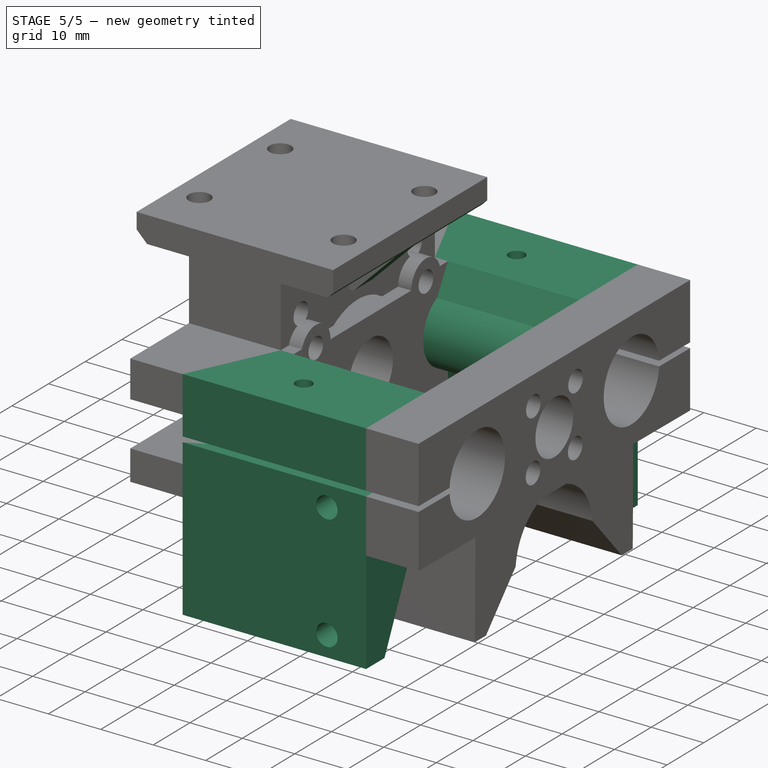
[diagram: stage 5 of 5 — iso view after this stage's code; geometry added in this stage tinted green]
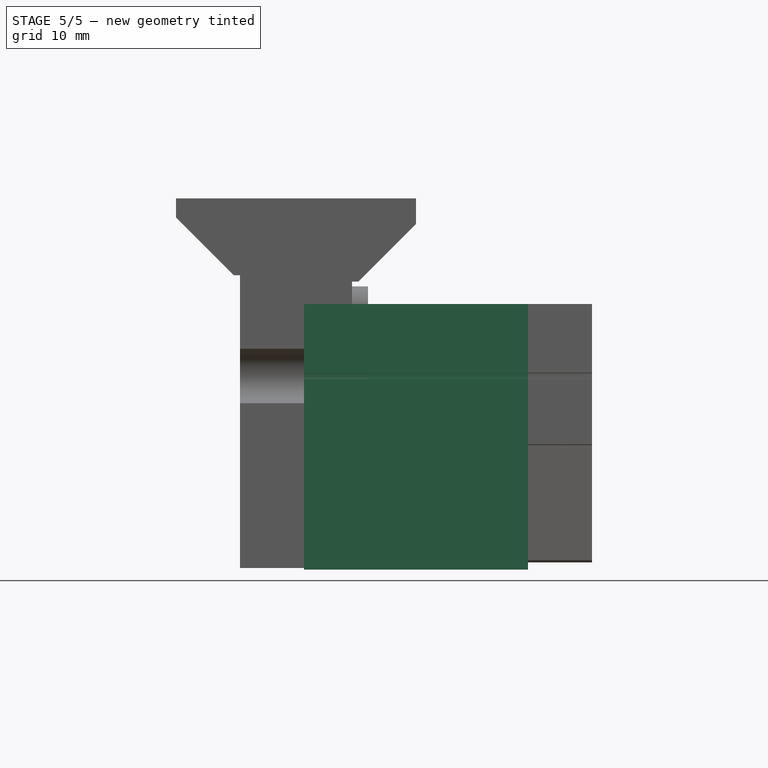
[diagram: stage 5 of 5 — front view after this stage's code; geometry added in this stage tinted green]
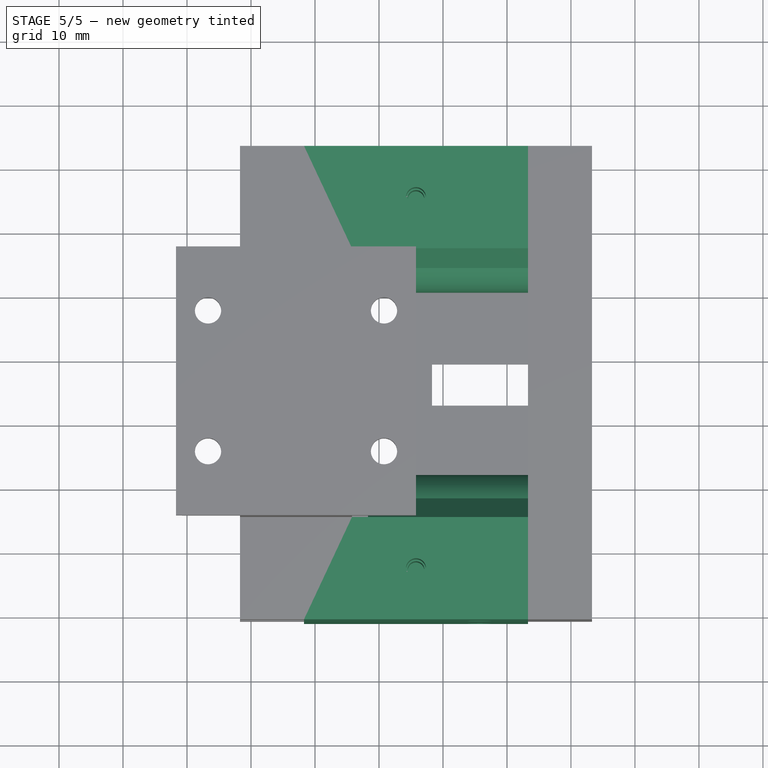
[diagram: stage 5 of 5 — top view after this stage's code; geometry added in this stage tinted green]
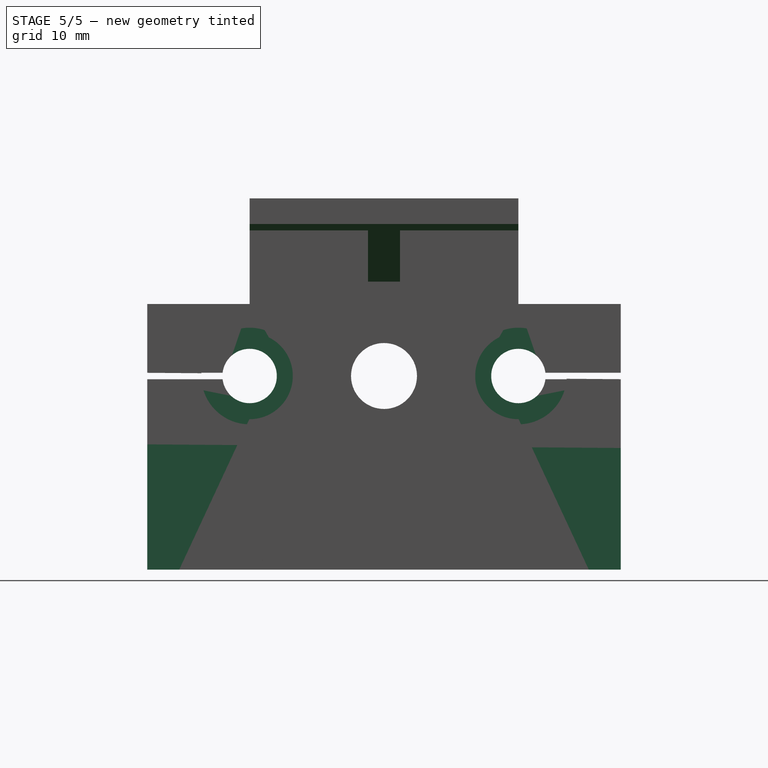
[diagram: stage 5 of 5 — right view after this stage's code; geometry added in this stage tinted green]
FEATURE [PartDesign::Plane] DatumPlane002
  AttachmentSupport = -> [Pad002]
  Length = 110.779
  MapMode = 5
  Placement = pos=(385.783,-33.955,86.233) rot=(0.57735,0.57735,0.57735;2.0944rad)
  ResizeMode = 0
  Width = 204.057
FEATURE [Sketcher::SketchObject] Sketch003
  ArcFitTolerance = 1e-06
  AttachmentSupport = -> [DatumPlane002]
  ExternalGeometry = -> [Pad002]
  FullyConstrained = true
  MakeInternals = false
  MapMode = 5
  Placement = pos=(385.783,-33.955,86.233) rot=(0.57735,0.57735,0.57735;2.0944rad)
  expr: Constraints[33] = <<N17M SET>>.T8RodHoleDia + 5 mm
  sketch-geometry (22):
    g0: ArcOfCircle CenterX=-11 CenterY=40.25 CenterZ=0 NormalX=0 NormalY=0 NormalZ=1 AngleXU=0 Radius=4.25 StartAngle=3.25951 EndAngle=9.30686
    g1: ArcOfCircle CenterX=31 CenterY=40.25 CenterZ=0 NormalX=0 NormalY=0 NormalZ=1 AngleXU=0 Radius=4.25 StartAngle=0.11792 EndAngle=6.16527
    g2: LineSegment StartX=-15.2205 StartY=40.75 StartZ=0 EndX=-27 EndY=40.75 EndZ=0
    g3: LineSegment StartX=-27 StartY=40.75 StartZ=0 EndX=-27 EndY=51.5 EndZ=0
    g4: LineSegment StartX=-27 StartY=51.5 StartZ=0 EndX=-11 EndY=51.5 EndZ=0
    g5: LineSegment StartX=-27 StartY=39.75 StartZ=0 EndX=-15.2205 EndY=39.75 EndZ=0
    g6: LineSegment StartX=-27 StartY=39.75 StartZ=0 EndX=-27 EndY=10 EndZ=0
    g7: LineSegment StartX=-27 StartY=10 StartZ=0 EndX=-22 EndY=10 EndZ=0
    g8: LineSegment StartX=47 StartY=10 StartZ=0 EndX=42 EndY=10 EndZ=0
    g9: LineSegment StartX=47 StartY=10 StartZ=0 EndX=47 EndY=39.75 EndZ=0
    g10: LineSegment StartX=47 StartY=39.75 StartZ=0 EndX=35.2205 EndY=39.75 EndZ=0
    g11: LineSegment StartX=35.2205 StartY=40.75 StartZ=0 EndX=47 EndY=40.75 EndZ=0
    g12: LineSegment StartX=47 StartY=40.75 StartZ=0 EndX=47 EndY=51.5 EndZ=0
    g13: LineSegment StartX=47 StartY=51.5 StartZ=0 EndX=31 EndY=51.5 EndZ=0
    g14: Circle [constr] CenterX=-11 CenterY=40.25 CenterZ=0 NormalX=0 NormalY=0 NormalZ=1 AngleXU=0 Radius=6.75
    g15: LineSegment StartX=-22 StartY=10 StartZ=0 EndX=-11.0417 EndY=33.5001 EndZ=0
    g16: Circle [constr] CenterX=31 CenterY=40.25 CenterZ=0 NormalX=0 NormalY=0 NormalZ=1 AngleXU=0 Radius=6.75
    g17: LineSegment StartX=31 StartY=51.5 StartZ=0 EndX=27.9942 EndY=46.2938 EndZ=0
    g18: LineSegment StartX=-11 StartY=51.5 StartZ=0 EndX=-7.99421 EndY=46.2938 EndZ=0
    g19: LineSegment StartX=42 StartY=10 StartZ=0 EndX=31.0417 EndY=33.5001 EndZ=0
    g20: ArcOfCircle CenterX=-11 CenterY=40.25 CenterZ=0 NormalX=0 NormalY=0 NormalZ=1 AngleXU=0 Radius=6.75 StartAngle=4.70621 EndAngle=7.39247
    g21: ArcOfCircle CenterX=31 CenterY=40.25 CenterZ=0 NormalX=0 NormalY=0 NormalZ=1 AngleXU=0 Radius=6.75 StartAngle=2.03231 EndAngle=4.71857
  constraints (54):
    c: Coincident(g0,g-12)
    c: Coincident(g0,g-12)
    c: PointOnObject(g0,g-10)
    c: Coincident(g1,g-13)
    c: Coincident(g1,g-14)
    c: PointOnObject(g1,g-15)
    c: Coincident(g2,g0)
    c: Coincident(g2,g-11)
    c: Coincident(g3,g2)
    c: Coincident(g3,g-8)
    c: Coincident(g4,g3)
    c: Coincident(g4,g-7)
    c: Coincident(g5,g-10)
    c: Coincident(g5,g0)
    c: Coincident(g6,g5)
    c: Coincident(g6,g-9)
    c: Distance(g7) = 5
    c: Coincident(g7,g6)
    c: PointOnObject(g7,g-6)
    c: Distance(g8) = 5
    c: Coincident(g8,g-6)
    c: PointOnObject(g8,g-6)
    c: Coincident(g9,g8)
    c: Coincident(g9,g-15)
    c: Coincident(g10,g9)
    c: Coincident(g10,g1)
    c: Coincident(g11,g1)
    c: Coincident(g11,g-14)
    c: Coincident(g12,g11)
    c: Coincident(g12,g-4)
    c: Coincident(g13,g12)
    c: Coincident(g13,g-4)
    c: Coincident(g14,g0)
    c: Diameter(g14) = 13.5
    c: Angle(g-1,g15) = 1.13446
    c: Coincident(g15,g7)
    c: PointOnObject(g15,g14)
    c: Coincident(g16,g1)
    c: Equal(g14,g16)
    c: Angle(g-1,g17) = -2.0944
    c: Coincident(g17,g13)
    c: PointOnObject(g17,g16)
    c: Angle(g-1,g18) = -1.0472
    c: Coincident(g18,g4)
    c: PointOnObject(g18,g14)
    c: Angle(g-1,g19) = 2.00713
    c: Coincident(g19,g8)
    c: PointOnObject(g19,g16)
    c: Coincident(g20,g0)
    c: Coincident(g20,g18)
    c: PointOnObject(g20,g15)
    c: Coincident(g21,g1)
    c: Coincident(g21,g17)
    c: PointOnObject(g21,g19)
FEATURE [PartDesign::Pad] Pad003
  BaseFeature = -> Pad002
  Direction = (1,0,0)
  Length = 27.5
  Length2 = 10
  Placement = pos=(385.783,-33.955,86.233) rot=(0.57735,0.57735,0.57735;2.0944rad)
  Profile = -> Sketch003
  ReferenceAxis = -> Sketch003 [N_Axis]
  Refine = true
  Suppressed = false
  Type = 0
  expr: Length = <<N17M SET>>.T8PadLength
FEATURE [PartDesign::Plane] DatumPlane003
  AttachmentSupport = -> [Pad003]
  Length = 235.288
  MapMode = 5
  Placement = pos=(385.783,-60.955,86.233) rot=(0.57735,0.57735,-0.57735;2.0944rad)
  ResizeMode = 0
  Width = 494.338
FEATURE [Sketcher::SketchObject] Sketch004
  ArcFitTolerance = 1e-06
  AttachmentSupport = -> [DatumPlane003]
  ExternalGeometry = -> [Pad003]
  FullyConstrained = true
  MakeInternals = false
  MapMode = 5
  Placement = pos=(385.783,-60.955,86.233) rot=(0.57735,0.57735,-0.57735;2.0944rad)
  expr: Constraints[12] = <<N17M SET>>.EndStopHoleDia
  expr: Constraints[7] = <<N17M SET>>.EndStopMountHolesInsetLen
  expr: Constraints[8] = <<N17M SET>>.EndStopMountHoleSeparation / 2
  sketch-geometry (6):
    g0: GeomPoint X=-24.875 Y=27.5 Z=0
    g1: LineSegment [constr] StartX=-24.875 StartY=27.5 StartZ=0 EndX=-24.875 EndY=20 EndZ=0
    g2: LineSegment [constr] StartX=-24.875 StartY=20 StartZ=0 EndX=-13.875 EndY=20 EndZ=0
    g3: LineSegment [constr] StartX=-24.875 StartY=20 StartZ=0 EndX=-35.875 EndY=20 EndZ=0
    g4: Circle CenterX=-35.875 CenterY=20 CenterZ=0 NormalX=0 NormalY=0 NormalZ=1 AngleXU=0 Radius=2.05
    g5: Circle CenterX=-13.875 CenterY=20 CenterZ=0 NormalX=0 NormalY=0 NormalZ=1 AngleXU=0 Radius=2.05
  constraints (14):
    c: Symmetric(g-3,g-3,g0)
    c: Coincident(g1,g0)
    c: Vertical(g1)
    c: Coincident(g2,g1)
    c: Horizontal(g2)
    c: Coincident(g3,g1)
    c: Horizontal(g3)
    c: DistanceY(g1,g1) = 7.5
    c: DistanceX(g2,g2) = 11
    c: Equal(g2,g3)
    c: Coincident(g4,g3)
    c: Coincident(g5,g2)
    c: Diameter(g4) = 4.1
    c: Equal(g4,g5)
FEATURE [PartDesign::Pocket] Pocket
  BaseFeature = -> Pad003
  Direction = (0,1,0)
  Length = 5
  Length2 = 5
  Placement = pos=(385.783,-33.955,86.233) rot=(0.57735,0.57735,0.57735;2.0944rad)
  Profile = -> Sketch004
  ReferenceAxis = -> Sketch004 [N_Axis]
  Refine = true
  Suppressed = false
  Type = 0
  expr: Length = <<N17M SET>>.EndStopHoleDepth
FEATURE [PartDesign::Plane] DatumPlane004
  AttachmentSupport = -> [Pocket]
  Length = 235.288
  MapMode = 5
  Placement = pos=(385.783,13.045,86.233) rot=(0.57735,0.57735,0.57735;4.18879rad)
  ResizeMode = 0
  Width = 494.338
FEATURE [Sketcher::SketchObject] Sketch005
  ArcFitTolerance = 1e-06
  AttachmentSupport = -> [DatumPlane004]
  ExternalGeometry = -> [Pocket]
  FullyConstrained = true
  MakeInternals = false
  MapMode = 5
  Placement = pos=(385.783,13.045,86.233) rot=(0.57735,0.57735,0.57735;4.18879rad)
  expr: Constraints[11] = <<N17M SET>>.EndStopHoleDia
  expr: Constraints[6] = <<N17M SET>>.EndStopMountHolesInsetLen
  expr: Constraints[7] = <<N17M SET>>.EndStopMountHoleSeparation / 2
  sketch-geometry (5):
    g0: LineSegment [constr] StartX=24.875 StartY=27.5 StartZ=0 EndX=24.875 EndY=20 EndZ=0
    g1: LineSegment [constr] StartX=24.875 StartY=20 StartZ=0 EndX=35.875 EndY=20 EndZ=0
    g2: LineSegment [constr] StartX=24.875 StartY=20 StartZ=0 EndX=13.875 EndY=20 EndZ=0
    g3: Circle CenterX=13.875 CenterY=20 CenterZ=0 NormalX=0 NormalY=0 NormalZ=1 AngleXU=0 Radius=2.05
    g4: Circle CenterX=35.875 CenterY=20 CenterZ=0 NormalX=0 NormalY=0 NormalZ=1 AngleXU=0 Radius=2.05
  constraints (13):
    c: Symmetric(g-3,g-3,g0)
    c: Vertical(g0)
    c: Coincident(g1,g0)
    c: Horizontal(g1)
    c: Coincident(g2,g0)
    c: Horizontal(g2)
    c: DistanceY(g0,g0) = 7.5
    c: DistanceX(g2,g2) = 11
    c: Equal(g2,g1)
    c: Coincident(g3,g2)
    c: Coincident(g4,g1)
    c: Diameter(g3) = 4.1
    c: Equal(g3,g4)
FEATURE [PartDesign::Pocket] Pocket001
  BaseFeature = -> Pocket
  Direction = (0,-1,0)
  Length = 5
  Length2 = 5
  Placement = pos=(385.783,-33.955,86.233) rot=(0.57735,0.57735,0.57735;2.0944rad)
  Profile = -> Sketch005
  ReferenceAxis = -> Sketch005 [N_Axis]
  Refine = true
  Suppressed = false
  Type = 0
  expr: Length = <<N17M SET>>.EndStopHoleDepth
FEATURE [PartDesign::Chamfer] Chamfer
  Angle = 45
  Base = -> Pocket001 [Edge110]
  BaseFeature = -> Pocket001
  ChamferType = 0
  FlipDirection = false
  Placement = pos=(385.783,-33.955,86.233) rot=(0.57735,0.57735,0.57735;2.0944rad)
  Refine = true
  Size = 9
  Size2 = 1
  SupportTransform = false
  Suppressed = false
  UseAllEdges = false
FEATURE [PartDesign::Plane] DatumPlane005
  AttachmentSupport = -> [Chamfer]
  Length = 124.774
  MapMode = 5
  Placement = pos=(385.783,-33.955,137.733) rot=(0,0,-1;1.5708rad)
  ResizeMode = 0
  Width = 477.102
FEATURE [Sketcher::SketchObject] Sketch006
  ArcFitTolerance = 1e-06
  AttachmentSupport = -> [DatumPlane005]
  ExternalGeometry = -> [Chamfer]
  FullyConstrained = true
  MakeInternals = false
  MapMode = 5
  Placement = pos=(385.783,-33.955,137.733) rot=(0,0,-1;1.5708rad)
  sketch-geometry (10):
    g0: GeomPoint X=-47 Y=10 Z=0
    g1: GeomPoint X=27 Y=10 Z=0
    g2: GeomPoint X=-39 Y=27.5 Z=0
    g3: GeomPoint X=-39 Y=-7.5 Z=0
    g4: GeomPoint X=19 Y=27.5 Z=0
    g5: GeomPoint X=19 Y=-7.5 Z=0
    g6: LineSegment [constr] StartX=-39 StartY=-7.5 StartZ=0 EndX=-39 EndY=27.5 EndZ=0
    g7: LineSegment [constr] StartX=19 StartY=-7.5 StartZ=0 EndX=19 EndY=27.5 EndZ=0
    g8: Circle CenterX=-39 CenterY=10 CenterZ=0 NormalX=0 NormalY=0 NormalZ=1 AngleXU=0 Radius=1.55
    g9: Circle CenterX=19 CenterY=10 CenterZ=0 NormalX=0 NormalY=0 NormalZ=1 AngleXU=0 Radius=1.55
  constraints (14):
    c: Symmetric(g-8,g-8,g0)
    c: Symmetric(g-5,g-5,g1)
    c: Symmetric(g-3,g-3,g2)
    c: Symmetric(g-7,g-7,g3)
    c: Symmetric(g-4,g-4,g4)
    c: Symmetric(g-6,g-6,g5)
    c: Coincident(g6,g3)
    c: Coincident(g6,g2)
    c: Coincident(g7,g5)
    c: Coincident(g7,g4)
    c: Diameter(g8) = 3.1
    c: Symmetric(g6,g6,g8)
    c: Diameter(g9) = 3.1
    c: Symmetric(g7,g7,g9)
FEATURE [PartDesign::Pocket] Pocket002
  BaseFeature = -> Chamfer
  Direction = (0,0,-1)
  Length = 11
  Length2 = 5
  Placement = pos=(385.783,-33.955,86.233) rot=(0.57735,0.57735,0.57735;2.0944rad)
  Profile = -> Sketch006
  ReferenceAxis = -> Sketch006 [N_Axis]
  Refine = true
  Suppressed = false
  Type = 0
FEATURE [Sketcher::SketchObject] Sketch007
  ArcFitTolerance = 1e-06
  AttachmentSupport = -> [DatumPlane005]
  ExternalGeometry = -> [Pocket002]
  FullyConstrained = true
  MakeInternals = false
  MapMode = 5
  Placement = pos=(385.783,-33.955,137.733) rot=(0,0,-1;1.5708rad)
  sketch-geometry (2):
    g0: Circle CenterX=-39 CenterY=10 CenterZ=0 NormalX=0 NormalY=0 NormalZ=1 AngleXU=0 Radius=1.3
    g1: Circle CenterX=19 CenterY=10 CenterZ=0 NormalX=0 NormalY=0 NormalZ=1 AngleXU=0 Radius=1.3
  constraints (4):
    c: Diameter(g0) = 2.6
    c: Coincident(g0,g-3)
    c: Diameter(g1) = 2.6
    c: Coincident(g1,g-4)
FEATURE [PartDesign::Pocket] Pocket003
  BaseFeature = -> Pocket002
  Direction = (0,0,-1)
  Length = 24
  Length2 = 5
  Placement = pos=(385.783,-33.955,86.233) rot=(0.57735,0.57735,0.57735;2.0944rad)
  Profile = -> Sketch007
  ReferenceAxis = -> Sketch007 [N_Axis]
  Refine = true
  Suppressed = false
  Type = 0
FEATURE [PartDesign::Plane] DatumPlane006
  AttachmentSupport = -> [Pocket003]
  Length = 124.774
  MapMode = 5
  Placement = pos=(385.783,-33.955,96.233) rot=(0.707107,0.707107,0;3.14159rad)
  ResizeMode = 0
  Width = 477.102
FEATURE [Sketcher::SketchObject] Sketch008
  ArcFitTolerance = 1e-06
  AttachmentSupport = -> [DatumPlane006]
  ExternalGeometry = -> [Pocket003]
  FullyConstrained = true
  MakeInternals = false
  MapMode = 5
  Placement = pos=(385.783,-33.955,96.233) rot=(0.707107,0.707107,0;3.14159rad)
  expr: Constraints[10] = <<N17M SET>>.ControlSystemMountingHoleSep / 2
  expr: Constraints[14] = <<N17M SET>>.ControlSystemMountingHoleDia
  sketch-geometry (8):
    g0: GeomPoint X=10 Y=-7.5 Z=0
    g1: GeomPoint X=10 Y=8.53e-14 Z=0
    g2: LineSegment [constr] StartX=10 StartY=8.53e-14 StartZ=0 EndX=10 EndY=-7.5 EndZ=0
    g3: GeomPoint [constr] X=10 Y=-3.75 Z=0
    g4: LineSegment [constr] StartX=10 StartY=-3.75 StartZ=0 EndX=25 EndY=-3.75 EndZ=0
    g5: LineSegment [constr] StartX=10 StartY=-3.75 StartZ=0 EndX=-5 EndY=-3.75 EndZ=0
    g6: Circle CenterX=-5 CenterY=-3.75 CenterZ=0 NormalX=0 NormalY=0 NormalZ=1 AngleXU=0 Radius=2
    g7: Circle CenterX=25 CenterY=-3.75 CenterZ=0 NormalX=0 NormalY=0 NormalZ=1 AngleXU=0 Radius=2
  constraints (15):
    c: Symmetric(g-5,g-5,g0)
    c: Symmetric(g-8,g-8,g1)
    c: Coincident(g2,g1)
    c: Coincident(g2,g0)
    c: Symmetric(g2,g2,g3)
    c: Coincident(g4,g3)
    c: Horizontal(g4)
    c: Coincident(g5,g3)
    c: Horizontal(g5)
    c: Equal(g4,g5)
    c: DistanceX(g4,g4) = 15
    c: Coincident(g6,g5)
    c: Coincident(g7,g4)
    c: Equal(g7,g6)
    c: Diameter(g6) = 4
FEATURE [PartDesign::Pocket] Pocket004
  BaseFeature = -> Pocket003
  Direction = (0,0,1)
  Length = 6
  Length2 = 5
  Placement = pos=(385.783,-33.955,86.233) rot=(0.57735,0.57735,0.57735;2.0944rad)
  Profile = -> Sketch008
  ReferenceAxis = -> Sketch008 [N_Axis]
  Refine = true
  Suppressed = false
  Type = 0
  expr: Length = <<N17M SET>>.COntrolSystemMountingHoleDepth
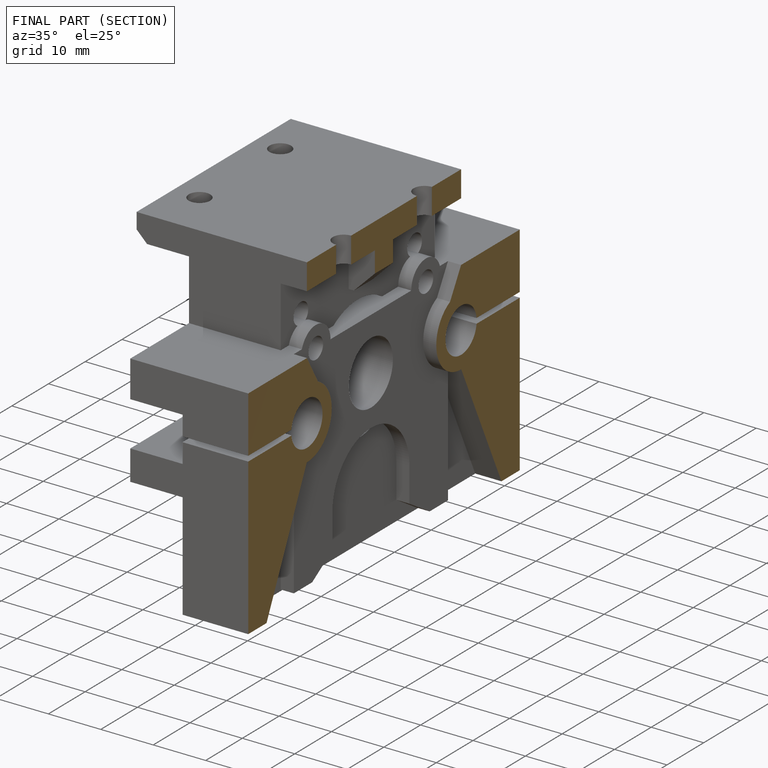
[diagram: finished part — half-section view (interior)]
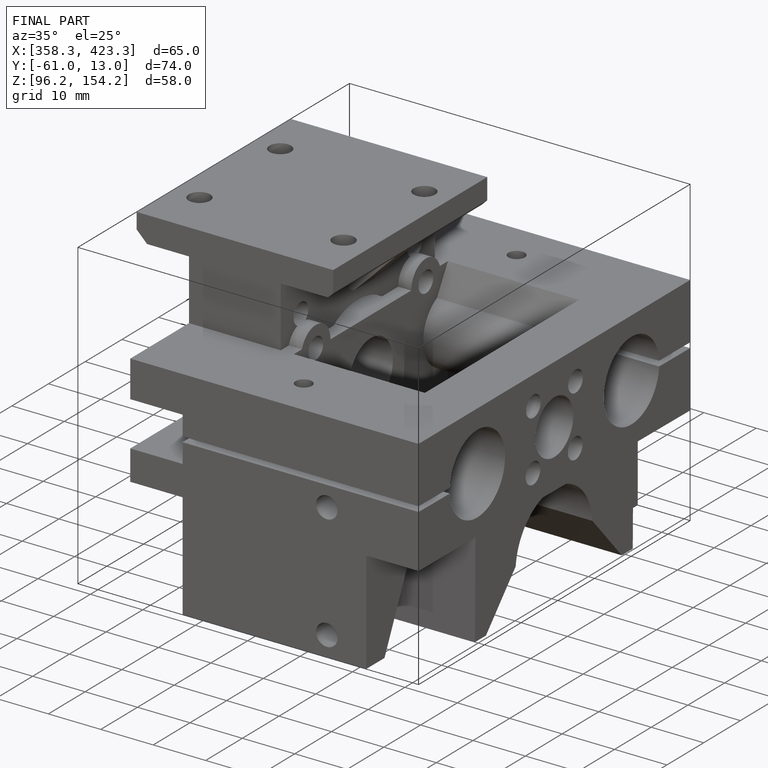
[diagram: finished part — iso view with bounding-box wireframe]
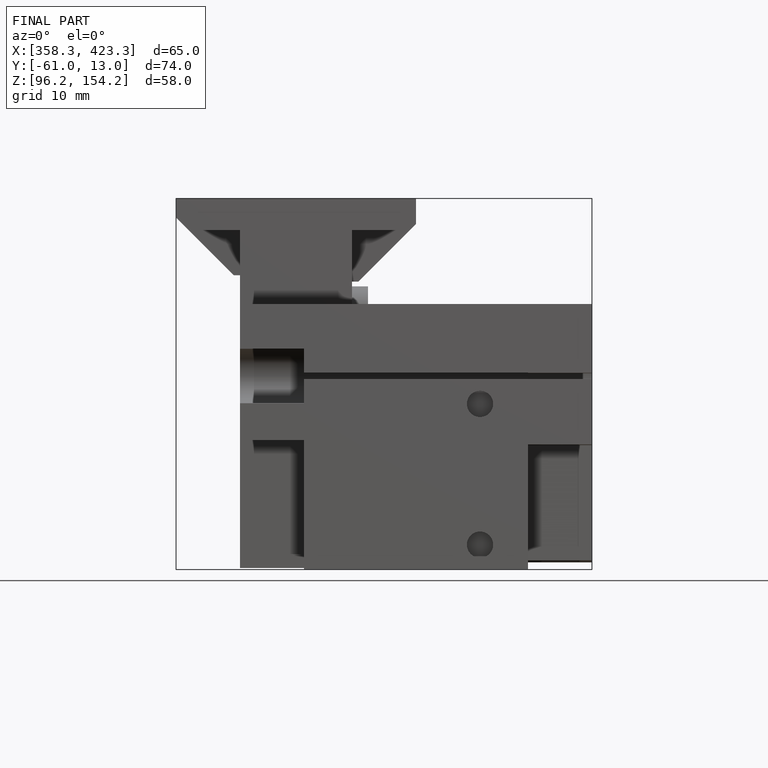
[diagram: finished part — front view with bounding-box wireframe]
